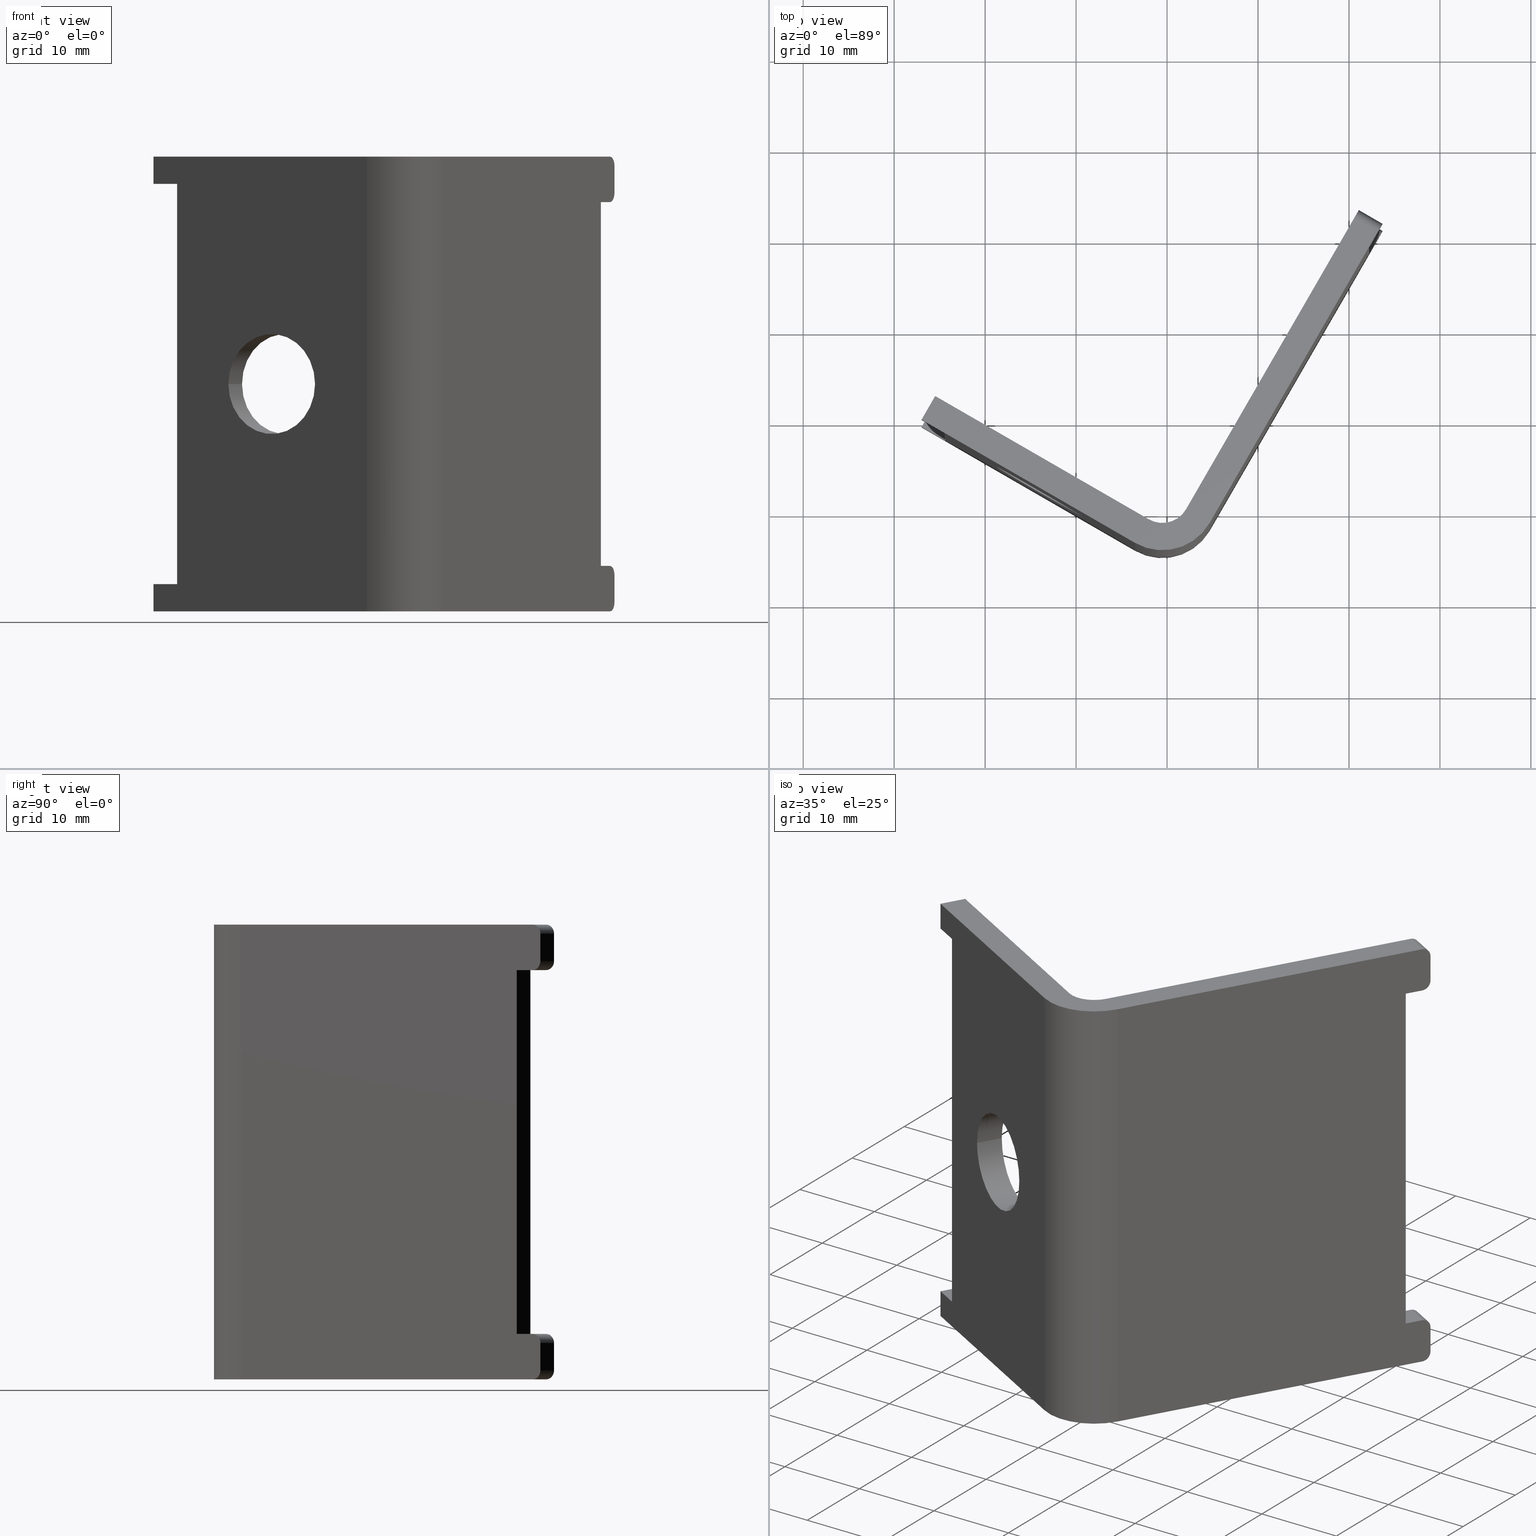
[diagram: canonical four-view strip — front | top / right | iso, engineering-drawing reading convention]
A machine part, canonical four-view strip (front | top / right | iso — engineering-drawing reading convention). The complete STEP part file that produces these views, byte-faithful:
ISO-10303-21;
HEADER;
FILE_DESCRIPTION (( 'STEP AP203' ),
    '1' );
FILE_NAME ('CV03-C-09_REV_A.step',
    '2025-08-17T05:17:42',
    ( '' ),
    ( '' ),
    'SwSTEP 2.0',
    'SolidWorks 2024',
    '' );
FILE_SCHEMA (( 'CONFIG_CONTROL_DESIGN' ));
ENDSEC;

DATA;
#1 = LINE ( 'NONE', #845, #650 ) ;
#2 = DIRECTION ( 'NONE',  ( -0.8660254037844363761, 0.5000000000000041078, 0.000000000000000000 ) ) ;
#3 = ORIENTED_EDGE ( 'NONE', *, *, #456, .T. ) ;
#4 = EDGE_CURVE ( 'NONE', #802, #139, #573, .T. ) ;
#5 = FACE_OUTER_BOUND ( 'NONE', #496, .T. ) ;
#6 = CARTESIAN_POINT ( 'NONE',  ( 583.0113405556609223, 1039.805264067781309, -25.00000000000002842 ) ) ;
#7 = APPROVAL ( #452, 'UNSPECIFIED' ) ;
#8 = CARTESIAN_POINT ( 'NONE',  ( 631.0831529111263762, 1062.853837226374935, -21.00000000000000000 ) ) ;
#9 = ORIENTED_EDGE ( 'NONE', *, *, #86, .T. ) ;
#10 = VECTOR ( 'NONE', #460, 1000.000000000000114 ) ;
#11 = DIRECTION ( 'NONE',  ( -1.000000000000000000, 0.000000000000000000, 0.000000000000000000 ) ) ;
#12 = LINE ( 'NONE', #497, #260 ) ;
#13 = AXIS2_PLACEMENT_3D ( 'NONE', #226, #380, #661 ) ;
#14 = DIRECTION ( 'NONE',  ( -0.5000000000000401901, -0.8660254037844155039, 0.000000000000000000 ) ) ;
#15 = VECTOR ( 'NONE', #210, 1000.000000000000000 ) ;
#16 = FACE_OUTER_BOUND ( 'NONE', #36, .T. ) ;
#17 = DIRECTION ( 'NONE',  ( -0.5000000000000022204, -0.8660254037844373753, -0.000000000000000000 ) ) ;
#18 = EDGE_CURVE ( 'NONE', #276, #243, #673, .T. ) ;
#19 = CARTESIAN_POINT ( 'NONE',  ( 584.5113405556609223, 1042.403340279134682, 25.00000000000000000 ) ) ;
#20 = CALENDAR_DATE ( 2025, 17, 8 ) ;
#21 = FACE_OUTER_BOUND ( 'NONE', #837, .T. ) ;
#22 = DIRECTION ( 'NONE',  ( 0.5000000000000401901, 0.8660254037844155039, 0.000000000000000000 ) ) ;
#23 = LINE ( 'NONE', #438, #540 ) ;
#24 = DIRECTION ( 'NONE',  ( 0.000000000000000000, 0.000000000000000000, -1.000000000000000000 ) ) ;
#25 = CLOSED_SHELL ( 'NONE', ( #453, #405, #662, #349, #808, #560, #164, #74, #396, #513, #555, #652, #252, #92, #670, #49, #548, #563, #531, #707, #717, #631, #114, #891, #375, #509, #356, #821 ) ) ;
#26 = ORIENTED_EDGE ( 'NONE', *, *, #391, .T. ) ;
#27 = VERTEX_POINT ( 'NONE', #752 ) ;
#28 = CARTESIAN_POINT ( 'NONE',  ( 630.5831529111263762, 1061.987811822590629, -24.00000000000000000 ) ) ;
#29 = AXIS2_PLACEMENT_3D ( 'NONE', #293, #859, #571 ) ;
#30 = LOCAL_TIME ( 15, 17, 42.00000000000000000, #902 ) ;
#31 = EDGE_CURVE ( 'NONE', #334, #146, #612, .T. ) ;
#32 = CARTESIAN_POINT ( 'NONE',  ( 592.7385822518555187, 1037.653340071148705, 6.735557395301680737E-16 ) ) ;
#33 = ORIENTED_EDGE ( 'NONE', *, *, #223, .T. ) ;
#34 = DIRECTION ( 'NONE',  ( 0.5000000000000041078, 0.8660254037844363761, 0.000000000000000000 ) ) ;
#35 = CC_DESIGN_PERSON_AND_ORGANIZATION_ASSIGNMENT ( #486, #530, ( #285 ) ) ;
#36 = EDGE_LOOP ( 'NONE', ( #98, #542, #683, #435, #459, #111, #583, #507, #115, #42, #60, #490 ) ) ;
#37 = CARTESIAN_POINT ( 'NONE',  ( 587.1094167670474917, 1040.903340279115355, 22.00000000000000355 ) ) ;
#38 = VERTEX_POINT ( 'NONE', #241 ) ;
#39 = EDGE_CURVE ( 'NONE', #334, #802, #760, .T. ) ;
#40 = DIRECTION ( 'NONE',  ( 0.8660254037844403729, -0.4999999999999969469, 0.000000000000000000 ) ) ;
#41 = ORIENTED_EDGE ( 'NONE', *, *, #462, .T. ) ;
#42 = ORIENTED_EDGE ( 'NONE', *, *, #391, .F. ) ;
#43 = CARTESIAN_POINT ( 'NONE',  ( 587.1094167670474917, 1040.903340279115355, -22.00000000000000355 ) ) ;
#44 = EDGE_CURVE ( 'NONE', #535, #696, #846, .T. ) ;
#45 = FACE_OUTER_BOUND ( 'NONE', #281, .T. ) ;
#46 = DIRECTION ( 'NONE',  ( -0.000000000000000000, -0.000000000000000000, -1.000000000000000000 ) ) ;
#47 = VERTEX_POINT ( 'NONE', #688 ) ;
#48 = DIRECTION ( 'NONE',  ( 0.8660254037844344888, -0.5000000000000073275, 0.000000000000000000 ) ) ;
#49 = ADVANCED_FACE ( 'NONE', ( #546 ), #484, .T. ) ;
#50 = VECTOR ( 'NONE', #217, 1000.000000000000000 ) ;
#51 = CARTESIAN_POINT ( 'NONE',  ( 610.5848748840967346, 1027.349778215887454, 25.00000000000000000 ) ) ;
#52 = AXIS2_PLACEMENT_3D ( 'NONE', #754, #771, #684 ) ;
#53 = CARTESIAN_POINT ( 'NONE',  ( 584.5113405556942325, 1042.403340279115582, 22.00000000000000355 ) ) ;
#54 = EDGE_CURVE ( 'NONE', #321, #144, #408, .T. ) ;
#55 = DIRECTION ( 'NONE',  ( 0.5000000000000401901, 0.8660254037844155039, 0.000000000000000000 ) ) ;
#56 = ORIENTED_EDGE ( 'NONE', *, *, #597, .T. ) ;
#57 = EDGE_CURVE ( 'NONE', #443, #668, #616, .T. ) ;
#58 = DATE_AND_TIME ( #811, #778 ) ;
#59 = VERTEX_POINT ( 'NONE', #624 ) ;
#60 = ORIENTED_EDGE ( 'NONE', *, *, #330, .F. ) ;
#61 = DIRECTION ( 'NONE',  ( -0.8660254037844317132, 0.5000000000000124345, -0.000000000000000000 ) ) ;
#62 = DATE_TIME_ROLE ( 'classification_date' ) ;
#63 = CARTESIAN_POINT ( 'NONE',  ( 613.1829510954501075, 1025.849778215887227, -19.99999999999999645 ) ) ;
#64 = DIRECTION ( 'NONE',  ( 0.000000000000000000, -0.000000000000000000, 1.000000000000000000 ) ) ;
#65 = VECTOR ( 'NONE', #262, 1000.000000000000114 ) ;
#66 = PRODUCT ( 'CV03-C-09_REV_A', 'CV03-C-09_REV_A', '', ( #570 ) ) ;
#67 = ORIENTED_EDGE ( 'NONE', *, *, #86, .F. ) ;
#68 = LINE ( 'NONE', #271, #626 ) ;
#69 = LINE ( 'NONE', #266, #112 ) ;
#70 = LINE ( 'NONE', #272, #219 ) ;
#71 = CIRCLE ( 'NONE', #394, 3.000000000000002665 ) ;
#72 = ADVANCED_BREP_SHAPE_REPRESENTATION ( 'CV03-C-09_REV_A', ( #768, #867 ), #420 ) ;
#73 = LINE ( 'NONE', #765, #653 ) ;
#74 = ADVANCED_FACE ( 'NONE', ( #911 ), #268, .T. ) ;
#75 = ORIENTED_EDGE ( 'NONE', *, *, #456, .F. ) ;
#76 = EDGE_LOOP ( 'NONE', ( #843, #575, #365, #674 ) ) ;
#77 = DIRECTION ( 'NONE',  ( 0.000000000000000000, 0.000000000000000000, 1.000000000000000000 ) ) ;
#78 = DIRECTION ( 'NONE',  ( -0.8660254037844363761, 0.5000000000000041078, 0.000000000000000000 ) ) ;
#79 = CARTESIAN_POINT ( 'NONE',  ( 583.0113405556609223, 1039.805264067781309, 22.00000000000000000 ) ) ;
#80 = LINE ( 'NONE', #63, #248 ) ;
#81 = ORIENTED_EDGE ( 'NONE', *, *, #316, .T. ) ;
#82 = ORIENTED_EDGE ( 'NONE', *, *, #234, .T. ) ;
#83 = DIRECTION ( 'NONE',  ( -0.5000000000000041078, -0.8660254037844363761, 0.000000000000000000 ) ) ;
#84 = CIRCLE ( 'NONE', #108, 1.000000000000031530 ) ;
#85 = DIRECTION ( 'NONE',  ( 0.4999999999999969469, 0.8660254037844404840, -0.000000000000000000 ) ) ;
#86 = EDGE_CURVE ( 'NONE', #585, #180, #610, .T. ) ;
#87 = CARTESIAN_POINT ( 'NONE',  ( 630.5831529111263762, 1061.987811822590402, 24.99999999999999645 ) ) ;
#88 = VECTOR ( 'NONE', #159, 1000.000000000000000 ) ;
#89 = EDGE_LOOP ( 'NONE', ( #275, #793, #499, #724 ) ) ;
#90 = DIRECTION ( 'NONE',  ( 0.8660254037844404840, -0.4999999999999969469, 0.000000000000000000 ) ) ;
#91 = DIRECTION ( 'NONE',  ( 0.000000000000000000, 0.000000000000000000, -1.000000000000000000 ) ) ;
#92 = ADVANCED_FACE ( 'NONE', ( #881 ), #812, .T. ) ;
#93 = CARTESIAN_POINT ( 'NONE',  ( 633.1812291224796354, 1060.487811822590629, 20.99999999999999645 ) ) ;
#94 = ORIENTED_EDGE ( 'NONE', *, *, #604, .F. ) ;
#95 = DIRECTION ( 'NONE',  ( -0.5000000000000401901, -0.8660254037844155039, 0.000000000000000000 ) ) ;
#96 = VERTEX_POINT ( 'NONE', #615 ) ;
#97 = CARTESIAN_POINT ( 'NONE',  ( 587.1094167670474917, 1040.903340279115355, -22.00000000000000355 ) ) ;
#98 = ORIENTED_EDGE ( 'NONE', *, *, #315, .T. ) ;
#99 = AXIS2_PLACEMENT_3D ( 'NONE', #123, #406, #410 ) ;
#100 = DIRECTION ( 'NONE',  ( -0.5000000000000401901, -0.8660254037844155039, 0.000000000000000000 ) ) ;
#101 = EDGE_CURVE ( 'NONE', #852, #96, #537, .T. ) ;
#102 = VERTEX_POINT ( 'NONE', #750 ) ;
#103 = ORIENTED_EDGE ( 'NONE', *, *, #322, .T. ) ;
#104 = PLANE ( 'NONE',  #757 ) ;
#105 = FACE_OUTER_BOUND ( 'NONE', #457, .T. ) ;
#106 = CARTESIAN_POINT ( 'NONE',  ( 584.5113405556609223, 1042.403340279134682, 25.00000000000000000 ) ) ;
#107 = EDGE_CURVE ( 'NONE', #321, #852, #678, .T. ) ;
#108 = AXIS2_PLACEMENT_3D ( 'NONE', #194, #288, #479 ) ;
#109 = CARTESIAN_POINT ( 'NONE',  ( 631.0831529111263762, 1062.853837226374935, 19.99999999999999645 ) ) ;
#110 = VECTOR ( 'NONE', #184, 1000.000000000000000 ) ;
#111 = ORIENTED_EDGE ( 'NONE', *, *, #316, .F. ) ;
#112 = VECTOR ( 'NONE', #128, 1000.000000000000114 ) ;
#113 = DIRECTION ( 'NONE',  ( -0.8660254037844317132, 0.5000000000000124345, -0.000000000000000000 ) ) ;
#114 = ADVANCED_FACE ( 'NONE', ( #318 ), #190, .T. ) ;
#115 = ORIENTED_EDGE ( 'NONE', *, *, #745, .F. ) ;
#116 = DIRECTION ( 'NONE',  ( 0.8660254037844404840, -0.4999999999999969469, 0.000000000000000000 ) ) ;
#117 = VECTOR ( 'NONE', #544, 1000.000000000000114 ) ;
#118 = CARTESIAN_POINT ( 'NONE',  ( 631.0831529111263762, 1062.853837226374935, 23.99999999999999645 ) ) ;
#119 = APPROVAL ( #174, 'UNSPECIFIED' ) ;
#120 = ORIENTED_EDGE ( 'NONE', *, *, #848, .F. ) ;
#121 = LINE ( 'NONE', #619, #823 ) ;
#122 = AXIS2_PLACEMENT_3D ( 'NONE', #400, #113, #251 ) ;
#123 = CARTESIAN_POINT ( 'NONE',  ( 610.5848748840967346, 1027.349778215887454, 25.00000000000000000 ) ) ;
#124 = VECTOR ( 'NONE', #367, 1000.000000000000114 ) ;
#125 = CARTESIAN_POINT ( 'NONE',  ( 584.5113405556609223, 1042.403340279134682, 25.00000000000000000 ) ) ;
#126 = VERTEX_POINT ( 'NONE', #590 ) ;
#127 = APPROVAL_ROLE ( '' ) ;
#128 = DIRECTION ( 'NONE',  ( 0.5000000000000124345, 0.8660254037844314912, -0.000000000000000000 ) ) ;
#129 = DIRECTION ( 'NONE',  ( 0.4999999999999969469, 0.8660254037844404840, -0.000000000000000000 ) ) ;
#130 = DIRECTION ( 'NONE',  ( -0.5000000000000041078, -0.8660254037844363761, 0.000000000000000000 ) ) ;
#131 = DIRECTION ( 'NONE',  ( -0.5000000000000124345, -0.8660254037844314912, 0.000000000000000000 ) ) ;
#132 = EDGE_CURVE ( 'NONE', #523, #618, #169, .T. ) ;
#133 = CARTESIAN_POINT ( 'NONE',  ( 609.4867986727433617, 1031.447854427240827, 25.00000000000000000 ) ) ;
#134 = VECTOR ( 'NONE', #2, 1000.000000000000000 ) ;
#135 = ORIENTED_EDGE ( 'NONE', *, *, #888, .F. ) ;
#136 = DIRECTION ( 'NONE',  ( -0.8660254037844317132, 0.5000000000000124345, -0.000000000000000000 ) ) ;
#137 = PLANE ( 'NONE',  #817 ) ;
#138 = AXIS2_PLACEMENT_3D ( 'NONE', #551, #300, #593 ) ;
#139 = VERTEX_POINT ( 'NONE', #733 ) ;
#140 = ORIENTED_EDGE ( 'NONE', *, *, #31, .T. ) ;
#141 = CARTESIAN_POINT ( 'NONE',  ( 584.5113405556609223, 1042.403340279134682, -25.00000000000000000 ) ) ;
#142 = EDGE_CURVE ( 'NONE', #594, #227, #181, .T. ) ;
#143 = VERTEX_POINT ( 'NONE', #329 ) ;
#144 = VERTEX_POINT ( 'NONE', #764 ) ;
#145 = DIRECTION ( 'NONE',  ( 0.5000000000000041078, 0.8660254037844363761, -0.000000000000000000 ) ) ;
#146 = VERTEX_POINT ( 'NONE', #412 ) ;
#147 = VECTOR ( 'NONE', #421, 1000.000000000000000 ) ;
#148 = CARTESIAN_POINT ( 'NONE',  ( 587.1094167670474917, 1040.903340279115355, -22.00000000000000355 ) ) ;
#149 = LINE ( 'NONE', #202, #592 ) ;
#150 = AXIS2_PLACEMENT_3D ( 'NONE', #647, #24, #800 ) ;
#151 = CARTESIAN_POINT ( 'NONE',  ( 0.000000000000000000, 0.000000000000000000, 0.000000000000000000 ) ) ;
#152 = PLANE ( 'NONE',  #419 ) ;
#153 = ORIENTED_EDGE ( 'NONE', *, *, #731, .F. ) ;
#154 = AXIS2_PLACEMENT_3D ( 'NONE', #697, #264, #766 ) ;
#155 = DIRECTION ( 'NONE',  ( -0.000000000000000000, -0.000000000000000000, -1.000000000000000000 ) ) ;
#156 = FACE_OUTER_BOUND ( 'NONE', #358, .T. ) ;
#157 = VERTEX_POINT ( 'NONE', #621 ) ;
#158 = CARTESIAN_POINT ( 'NONE',  ( 583.0113405556941188, 1039.805264067762209, 22.00000000000000000 ) ) ;
#159 = DIRECTION ( 'NONE',  ( -0.000000000000000000, -0.000000000000000000, -1.000000000000000000 ) ) ;
#160 = FACE_BOUND ( 'NONE', #795, .T. ) ;
#161 = EDGE_CURVE ( 'NONE', #594, #180, #446, .T. ) ;
#162 = ORIENTED_EDGE ( 'NONE', *, *, #581, .T. ) ;
#163 = LINE ( 'NONE', #515, #404 ) ;
#164 = ADVANCED_FACE ( 'NONE', ( #841 ), #730, .T. ) ;
#165 = ORIENTED_EDGE ( 'NONE', *, *, #888, .T. ) ;
#166 = ORIENTED_EDGE ( 'NONE', *, *, #642, .T. ) ;
#167 = VECTOR ( 'NONE', #865, 1000.000000000000114 ) ;
#168 = DIRECTION ( 'NONE',  ( 0.000000000000000000, 0.000000000000000000, -1.000000000000000000 ) ) ;
#169 = LINE ( 'NONE', #473, #753 ) ;
#170 = EDGE_CURVE ( 'NONE', #227, #27, #779, .T. ) ;
#171 = DIRECTION ( 'NONE',  ( 0.000000000000000000, 0.000000000000000000, -1.000000000000000000 ) ) ;
#172 = PLANE ( 'NONE',  #736 ) ;
#173 = LINE ( 'NONE', #739, #323 ) ;
#174 = APPROVAL_STATUS ( 'not_yet_approved' ) ;
#175 = CIRCLE ( 'NONE', #29, 3.000000000000002665 ) ;
#176 = EDGE_CURVE ( 'NONE', #523, #585, #196, .T. ) ;
#177 = ORIENTED_EDGE ( 'NONE', *, *, #231, .F. ) ;
#178 = PERSON_AND_ORGANIZATION ( #773, #250 ) ;
#179 = CC_DESIGN_PERSON_AND_ORGANIZATION_ASSIGNMENT ( #286, #677, ( #285 ) ) ;
#180 = VERTEX_POINT ( 'NONE', #550 ) ;
#181 = LINE ( 'NONE', #125, #791 ) ;
#182 = ORIENTED_EDGE ( 'NONE', *, *, #597, .F. ) ;
#183 = ORIENTED_EDGE ( 'NONE', *, *, #703, .F. ) ;
#184 = DIRECTION ( 'NONE',  ( 0.5000000000000041078, 0.8660254037844363761, 0.000000000000000000 ) ) ;
#185 = ORIENTED_EDGE ( 'NONE', *, *, #359, .F. ) ;
#186 = FACE_BOUND ( 'NONE', #831, .T. ) ;
#187 = AXIS2_PLACEMENT_3D ( 'NONE', #533, #61, #55 ) ;
#188 = CARTESIAN_POINT ( 'NONE',  ( 614.6829510954501075, 1028.447854427240600, -25.00000000000000000 ) ) ;
#189 = ORIENTED_EDGE ( 'NONE', *, *, #57, .T. ) ;
#190 = PLANE ( 'NONE',  #295 ) ;
#191 = ORIENTED_EDGE ( 'NONE', *, *, #526, .T. ) ;
#192 = ORIENTED_EDGE ( 'NONE', *, *, #176, .F. ) ;
#193 = EDGE_CURVE ( 'NONE', #357, #785, #488, .T. ) ;
#194 = CARTESIAN_POINT ( 'NONE',  ( 630.5831529111263762, 1061.987811822590629, -21.00000000000000000 ) ) ;
#195 = DIRECTION ( 'NONE',  ( -0.8660254037844363761, 0.5000000000000041078, 0.000000000000000000 ) ) ;
#196 = LINE ( 'NONE', #79, #878 ) ;
#197 = DIRECTION ( 'NONE',  ( -0.8660254037844344888, 0.5000000000000073275, 0.000000000000000000 ) ) ;
#198 = CIRCLE ( 'NONE', #706, 1.000000000000031530 ) ;
#199 = EDGE_LOOP ( 'NONE', ( #720, #389, #651, #855 ) ) ;
#200 = EDGE_LOOP ( 'NONE', ( #589, #324, #463, #177 ) ) ;
#201 = ORIENTED_EDGE ( 'NONE', *, *, #359, .T. ) ;
#202 = CARTESIAN_POINT ( 'NONE',  ( 632.5831529172152159, 1065.451913448274581, 19.99999999999999645 ) ) ;
#203 = APPROVAL_PERSON_ORGANIZATION ( #716, #7, #127 ) ;
#204 = PLANE ( 'NONE',  #369 ) ;
#205 = EDGE_CURVE ( 'NONE', #47, #586, #466, .T. ) ;
#206 = APPLICATION_PROTOCOL_DEFINITION ( 'international standard', 'config_control_design', 1994, #579 ) ;
#207 = CARTESIAN_POINT ( 'NONE',  ( 631.0831529111263762, 1062.853837226374935, -21.00000000000000000 ) ) ;
#208 = APPROVAL_STATUS ( 'not_yet_approved' ) ;
#209 = DIRECTION ( 'NONE',  ( 0.8660254037844403729, -0.4999999999999969469, 0.000000000000000000 ) ) ;
#210 = DIRECTION ( 'NONE',  ( -0.000000000000000000, -0.000000000000000000, -1.000000000000000000 ) ) ;
#211 = PRODUCT_DEFINITION ( 'UNKNOWN', '', #285, #737 ) ;
#212 = LINE ( 'NONE', #431, #50 ) ;
#213 = ORIENTED_EDGE ( 'NONE', *, *, #422, .T. ) ;
#214 = DIRECTION ( 'NONE',  ( -0.8660254037844363761, 0.5000000000000041078, 0.000000000000000000 ) ) ;
#215 = LINE ( 'NONE', #87, #522 ) ;
#216 = ORIENTED_EDGE ( 'NONE', *, *, #307, .F. ) ;
#217 = DIRECTION ( 'NONE',  ( -0.000000000000000000, -0.000000000000000000, -1.000000000000000000 ) ) ;
#218 = LINE ( 'NONE', #566, #468 ) ;
#219 = VECTOR ( 'NONE', #628, 1000.000000000000000 ) ;
#220 = ORIENTED_EDGE ( 'NONE', *, *, #101, .T. ) ;
#221 = DATE_AND_TIME ( #862, #710 ) ;
#222 = ORIENTED_EDGE ( 'NONE', *, *, #170, .F. ) ;
#223 = EDGE_CURVE ( 'NONE', #276, #802, #84, .T. ) ;
#224 = DIRECTION ( 'NONE',  ( 0.8660254037844404840, -0.4999999999999969469, 0.000000000000000000 ) ) ;
#225 = ORIENTED_EDGE ( 'NONE', *, *, #294, .F. ) ;
#226 = CARTESIAN_POINT ( 'NONE',  ( 596.0017219726637450, 1032.305263859798970, 0.000000000000000000 ) ) ;
#227 = VERTEX_POINT ( 'NONE', #558 ) ;
#228 = EDGE_LOOP ( 'NONE', ( #67, #225, #346, #714 ) ) ;
#229 = PERSON_AND_ORGANIZATION_ROLE ( 'creator' ) ;
#230 = EDGE_LOOP ( 'NONE', ( #876, #809, #304, #385 ) ) ;
#231 = EDGE_CURVE ( 'NONE', #789, #403, #149, .T. ) ;
#232 = AXIS2_PLACEMENT_3D ( 'NONE', #309, #904, #682 ) ;
#233 = ORIENTED_EDGE ( 'NONE', *, *, #526, .F. ) ;
#234 = EDGE_CURVE ( 'NONE', #139, #102, #198, .T. ) ;
#235 = AXIS2_PLACEMENT_3D ( 'NONE', #889, #692, #704 ) ;
#236 = ORIENTED_EDGE ( 'NONE', *, *, #388, .F. ) ;
#237 = DIRECTION ( 'NONE',  ( 0.5000000000000041078, 0.8660254037844363761, -0.000000000000000000 ) ) ;
#238 = DIRECTION ( 'NONE',  ( -0.8660254037844314912, 0.5000000000000124345, -0.000000000000000000 ) ) ;
#239 = VERTEX_POINT ( 'NONE', #283 ) ;
#240 = EDGE_CURVE ( 'NONE', #38, #102, #1, .T. ) ;
#241 = CARTESIAN_POINT ( 'NONE',  ( 633.1812291224796354, 1060.487811822590402, -25.00000000000000000 ) ) ;
#242 = DIRECTION ( 'NONE',  ( -0.8660254037844314912, 0.5000000000000124345, -0.000000000000000000 ) ) ;
#243 = VERTEX_POINT ( 'NONE', #775 ) ;
#244 = VECTOR ( 'NONE', #237, 1000.000000000000000 ) ;
#245 = CARTESIAN_POINT ( 'NONE',  ( 631.0831529111263762, 1062.853837226374935, 20.99999999999999645 ) ) ;
#246 = APPROVAL_ROLE ( '' ) ;
#247 = AXIS2_PLACEMENT_3D ( 'NONE', #289, #517, #572 ) ;
#248 = VECTOR ( 'NONE', #83, 1000.000000000000000 ) ;
#249 = EDGE_LOOP ( 'NONE', ( #290, #326, #9, #805 ) ) ;
#250 = ORGANIZATION ( 'UNSPECIFIED', 'UNSPECIFIED', '' ) ;
#251 = DIRECTION ( 'NONE',  ( 0.5000000000000401901, 0.8660254037844155039, -2.220446049250243156E-13 ) ) ;
#252 = ADVANCED_FACE ( 'NONE', ( #702 ), #137, .T. ) ;
#253 = LINE ( 'NONE', #824, #909 ) ;
#254 = CARTESIAN_POINT ( 'NONE',  ( 609.4867986727433617, 1031.447854427240827, -25.00000000000000000 ) ) ;
#255 = CYLINDRICAL_SURFACE ( 'NONE', #319, 5.499999999992874145 ) ;
#256 = DIRECTION ( 'NONE',  ( -0.5000000000000041078, -0.8660254037844363761, 0.000000000000000000 ) ) ;
#257 = CARTESIAN_POINT ( 'NONE',  ( 610.5848748840967346, 1027.349778215887454, -25.00000000000000000 ) ) ;
#258 = DIRECTION ( 'NONE',  ( -0.000000000000000000, -0.000000000000000000, -1.000000000000000000 ) ) ;
#259 = ORIENTED_EDGE ( 'NONE', *, *, #734, .T. ) ;
#260 = VECTOR ( 'NONE', #553, 1000.000000000000000 ) ;
#261 =( NAMED_UNIT ( * ) SI_UNIT ( $, .STERADIAN. ) SOLID_ANGLE_UNIT ( ) );
#262 = DIRECTION ( 'NONE',  ( -0.8660254037844408170, 0.4999999999999963363, -0.000000000000000000 ) ) ;
#263 = EDGE_CURVE ( 'NONE', #126, #96, #477, .T. ) ;
#264 = DIRECTION ( 'NONE',  ( 0.4999999999999970024, 0.8660254037844404840, -0.000000000000000000 ) ) ;
#265 = CC_DESIGN_SECURITY_CLASSIFICATION ( #386, ( #285 ) ) ;
#266 = CARTESIAN_POINT ( 'NONE',  ( 607.9867986727432481, 1028.849778215887454, 25.00000000000000000 ) ) ;
#267 = CARTESIAN_POINT ( 'NONE',  ( 591.2385822518555187, 1035.055263859795332, 6.735557395301680737E-16 ) ) ;
#268 = PLANE ( 'NONE',  #430 ) ;
#269 = ORIENTED_EDGE ( 'NONE', *, *, #604, .T. ) ;
#270 = CARTESIAN_POINT ( 'NONE',  ( 584.5113405556609223, 1042.403340279134682, 25.00000000000000000 ) ) ;
#271 = CARTESIAN_POINT ( 'NONE',  ( 629.5831529068967711, 1060.255761007695810, -19.99999999999999645 ) ) ;
#272 = CARTESIAN_POINT ( 'NONE',  ( 632.1812291182501440, 1058.755761007695810, 25.00000000000000000 ) ) ;
#273 = CARTESIAN_POINT ( 'NONE',  ( 597.5017219726637450, 1034.903340071152343, 0.000000000000000000 ) ) ;
#274 = SHAPE_DEFINITION_REPRESENTATION ( #372, #72 ) ;
#275 = ORIENTED_EDGE ( 'NONE', *, *, #762, .T. ) ;
#276 = VERTEX_POINT ( 'NONE', #569 ) ;
#277 = PLANE ( 'NONE',  #138 ) ;
#278 = EDGE_CURVE ( 'NONE', #820, #144, #857, .T. ) ;
#279 = LINE ( 'NONE', #141, #602 ) ;
#280 = VECTOR ( 'NONE', #17, 999.9999999999998863 ) ;
#281 = EDGE_LOOP ( 'NONE', ( #870, #399, #3, #502 ) ) ;
#282 = VECTOR ( 'NONE', #874, 1000.000000000000114 ) ;
#283 = CARTESIAN_POINT ( 'NONE',  ( 600.7648616934719712, 1029.555263859802380, 0.000000000000000000 ) ) ;
#284 = CC_DESIGN_PERSON_AND_ORGANIZATION_ASSIGNMENT ( #370, #712, ( #66 ) ) ;
#285 = PRODUCT_DEFINITION_FORMATION_WITH_SPECIFIED_SOURCE ( 'ANY', '', #66, .NOT_KNOWN. ) ;
#286 = PERSON_AND_ORGANIZATION ( #773, #250 ) ;
#287 = DIRECTION ( 'NONE',  ( 0.5000000000000401901, 0.8660254037844155039, 0.000000000000000000 ) ) ;
#288 = DIRECTION ( 'NONE',  ( -0.8660254037844317132, 0.5000000000000124345, -0.000000000000000000 ) ) ;
#289 = CARTESIAN_POINT ( 'NONE',  ( 609.4867986727433617, 1031.447854427240827, 25.00000000000000000 ) ) ;
#290 = ORIENTED_EDGE ( 'NONE', *, *, #132, .F. ) ;
#291 = DIRECTION ( 'NONE',  ( -0.000000000000000000, 0.000000000000000000, -1.000000000000000000 ) ) ;
#292 = ORIENTED_EDGE ( 'NONE', *, *, #687, .T. ) ;
#293 = CARTESIAN_POINT ( 'NONE',  ( 609.4867986727433617, 1031.447854427240827, -25.00000000000000000 ) ) ;
#294 = EDGE_CURVE ( 'NONE', #401, #585, #12, .T. ) ;
#295 = AXIS2_PLACEMENT_3D ( 'NONE', #756, #832, #256 ) ;
#296 = AXIS2_PLACEMENT_3D ( 'NONE', #397, #64, #806 ) ;
#297 = ORIENTED_EDGE ( 'NONE', *, *, #39, .F. ) ;
#298 = CIRCLE ( 'NONE', #52, 1.000000000000031530 ) ;
#299 = CARTESIAN_POINT ( 'NONE',  ( 633.1812291224796354, 1060.487811822590402, 19.99999999999999645 ) ) ;
#300 = DIRECTION ( 'NONE',  ( 0.000000000000000000, -0.000000000000000000, 1.000000000000000000 ) ) ;
#301 = CARTESIAN_POINT ( 'NONE',  ( 630.5831529111263762, 1061.987811822590629, 23.99999999999999645 ) ) ;
#302 = PERSON_AND_ORGANIZATION ( #773, #250 ) ;
#303 = ORIENTED_EDGE ( 'NONE', *, *, #142, .F. ) ;
#304 = ORIENTED_EDGE ( 'NONE', *, *, #240, .T. ) ;
#305 = CARTESIAN_POINT ( 'NONE',  ( 613.1829510954501075, 1025.849778215887227, 25.00000000000000000 ) ) ;
#306 = EDGE_LOOP ( 'NONE', ( #75, #749, #308, #564 ) ) ;
#307 = EDGE_CURVE ( 'NONE', #852, #310, #279, .T. ) ;
#308 = ORIENTED_EDGE ( 'NONE', *, *, #39, .T. ) ;
#309 = CARTESIAN_POINT ( 'NONE',  ( 629.5831529068967711, 1060.255761007695810, 25.00000000000000000 ) ) ;
#310 = VERTEX_POINT ( 'NONE', #853 ) ;
#311 = ORIENTED_EDGE ( 'NONE', *, *, #54, .F. ) ;
#312 = ORIENTED_EDGE ( 'NONE', *, *, #860, .T. ) ;
#313 = AXIS2_PLACEMENT_3D ( 'NONE', #660, #392, #40 ) ;
#314 = EDGE_CURVE ( 'NONE', #310, #27, #345, .T. ) ;
#315 = EDGE_CURVE ( 'NONE', #443, #38, #562, .T. ) ;
#316 = EDGE_CURVE ( 'NONE', #59, #341, #70, .T. ) ;
#317 = CIRCLE ( 'NONE', #122, 1.000000000000031530 ) ;
#318 = FACE_OUTER_BOUND ( 'NONE', #552, .T. ) ;
#319 = AXIS2_PLACEMENT_3D ( 'NONE', #886, #520, #48 ) ;
#320 = ORIENTED_EDGE ( 'NONE', *, *, #762, .F. ) ;
#321 = VERTEX_POINT ( 'NONE', #428 ) ;
#322 = EDGE_CURVE ( 'NONE', #666, #634, #215, .T. ) ;
#323 = VECTOR ( 'NONE', #606, 1000.000000000000000 ) ;
#324 = ORIENTED_EDGE ( 'NONE', *, *, #432, .T. ) ;
#325 = DIRECTION ( 'NONE',  ( 0.5000000000000041078, 0.8660254037844363761, 0.000000000000000000 ) ) ;
#326 = ORIENTED_EDGE ( 'NONE', *, *, #176, .T. ) ;
#327 = CARTESIAN_POINT ( 'NONE',  ( 583.0113405556941188, 1039.805264067762209, 25.00000000000000000 ) ) ;
#328 = EDGE_LOOP ( 'NONE', ( #427, #568, #607, #538 ) ) ;
#329 = CARTESIAN_POINT ( 'NONE',  ( 585.6094167670476054, 1038.305264067762209, -22.00000000000002487 ) ) ;
#330 = EDGE_CURVE ( 'NONE', #658, #666, #735, .T. ) ;
#331 = ORIENTED_EDGE ( 'NONE', *, *, #4, .T. ) ;
#332 = ORIENTED_EDGE ( 'NONE', *, *, #635, .F. ) ;
#333 = CARTESIAN_POINT ( 'NONE',  ( 584.5113405556942325, 1042.403340279115582, -22.00000000000000355 ) ) ;
#334 = VERTEX_POINT ( 'NONE', #449 ) ;
#335 = DIRECTION ( 'NONE',  ( -0.8660254037844404840, 0.4999999999999969469, 0.000000000000000000 ) ) ;
#336 = LINE ( 'NONE', #851, #433 ) ;
#337 = COORDINATED_UNIVERSAL_TIME_OFFSET ( 10, 0, .AHEAD. ) ;
#338 = LINE ( 'NONE', #699, #344 ) ;
#339 = CIRCLE ( 'NONE', #892, 1.000000000000031530 ) ;
#340 = DIRECTION ( 'NONE',  ( 0.4999999999999970024, 0.8660254037844404840, -0.000000000000000000 ) ) ;
#341 = VERTEX_POINT ( 'NONE', #383 ) ;
#342 = CIRCLE ( 'NONE', #822, 1.000000000000031530 ) ;
#343 = CARTESIAN_POINT ( 'NONE',  ( 633.1812291224796354, 1060.487811822590629, -24.00000000000000000 ) ) ;
#344 = VECTOR ( 'NONE', #78, 1000.000000000000000 ) ;
#345 = LINE ( 'NONE', #705, #620 ) ;
#346 = ORIENTED_EDGE ( 'NONE', *, *, #584, .T. ) ;
#347 = CARTESIAN_POINT ( 'NONE',  ( 631.0831529111263762, 1062.853837226374935, 23.99999999999999645 ) ) ;
#348 = DATE_AND_TIME ( #409, #30 ) ;
#349 = ADVANCED_FACE ( 'NONE', ( #715 ), #582, .F. ) ;
#350 = ORIENTED_EDGE ( 'NONE', *, *, #422, .F. ) ;
#351 = ORIENTED_EDGE ( 'NONE', *, *, #440, .F. ) ;
#352 =( LENGTH_UNIT ( ) NAMED_UNIT ( * ) SI_UNIT ( .MILLI., .METRE. ) );
#353 = CARTESIAN_POINT ( 'NONE',  ( 584.5113405556609223, 1042.403340279134682, 25.00000000000000000 ) ) ;
#354 = DIRECTION ( 'NONE',  ( -0.8660254037844363761, 0.5000000000000041078, 0.000000000000000000 ) ) ;
#355 = FACE_OUTER_BOUND ( 'NONE', #249, .T. ) ;
#356 = ADVANCED_FACE ( 'NONE', ( #160, #814 ), #172, .F. ) ;
#357 = VERTEX_POINT ( 'NONE', #32 ) ;
#358 = EDGE_LOOP ( 'NONE', ( #120, #763, #758, #351 ) ) ;
#359 = EDGE_CURVE ( 'NONE', #634, #696, #339, .T. ) ;
#360 = LINE ( 'NONE', #803, #124 ) ;
#361 = DIRECTION ( 'NONE',  ( -0.8660254037844404840, 0.4999999999999969469, 0.000000000000000000 ) ) ;
#362 = VECTOR ( 'NONE', #847, 1000.000000000000000 ) ;
#363 = CARTESIAN_POINT ( 'NONE',  ( 584.5113405556609223, 1042.403340279134682, 25.00000000000000000 ) ) ;
#364 = ORIENTED_EDGE ( 'NONE', *, *, #796, .F. ) ;
#365 = ORIENTED_EDGE ( 'NONE', *, *, #314, .T. ) ;
#366 = CARTESIAN_POINT ( 'NONE',  ( 609.4867986727433617, 1031.447854427240827, 25.00000000000000000 ) ) ;
#367 = DIRECTION ( 'NONE',  ( 0.4999999999999969469, 0.8660254037844404840, -0.000000000000000000 ) ) ;
#368 = DIRECTION ( 'NONE',  ( -0.5000000000000124345, -0.8660254037844314912, 0.000000000000000000 ) ) ;
#369 = AXIS2_PLACEMENT_3D ( 'NONE', #37, #168, #238 ) ;
#370 = PERSON_AND_ORGANIZATION ( #773, #250 ) ;
#371 = EDGE_LOOP ( 'NONE', ( #743, #81, #897, #153 ) ) ;
#372 = PRODUCT_DEFINITION_SHAPE ( 'NONE', 'NONE',  #211 ) ;
#373 = CARTESIAN_POINT ( 'NONE',  ( 633.6812291224797491, 1061.353837226374935, 23.99999999999999645 ) ) ;
#374 = DIRECTION ( 'NONE',  ( -0.8660254037844317132, 0.5000000000000124345, -0.000000000000000000 ) ) ;
#375 = ADVANCED_FACE ( 'NONE', ( #748 ), #819, .T. ) ;
#376 = FACE_OUTER_BOUND ( 'NONE', #76, .T. ) ;
#377 = DIRECTION ( 'NONE',  ( -0.8660254037844362651, 0.5000000000000041078, 0.000000000000000000 ) ) ;
#378 = PLANE ( 'NONE',  #150 ) ;
#379 = DIRECTION ( 'NONE',  ( -0.000000000000000000, -0.000000000000000000, -1.000000000000000000 ) ) ;
#380 = DIRECTION ( 'NONE',  ( 0.4999999999999970024, 0.8660254037844404840, -0.000000000000000000 ) ) ;
#381 = VECTOR ( 'NONE', #390, 1000.000000000000000 ) ;
#382 = FACE_OUTER_BOUND ( 'NONE', #199, .T. ) ;
#383 = CARTESIAN_POINT ( 'NONE',  ( 632.1812291182501440, 1058.755761007695810, -19.99999999999999645 ) ) ;
#384 = CIRCLE ( 'NONE', #895, 5.499999999992874145 ) ;
#385 = ORIENTED_EDGE ( 'NONE', *, *, #234, .F. ) ;
#386 = SECURITY_CLASSIFICATION ( '', '', #827 ) ;
#387 = LINE ( 'NONE', #19, #167 ) ;
#388 = EDGE_CURVE ( 'NONE', #96, #443, #516, .T. ) ;
#389 = ORIENTED_EDGE ( 'NONE', *, *, #745, .T. ) ;
#390 = DIRECTION ( 'NONE',  ( -0.000000000000000000, -0.000000000000000000, -1.000000000000000000 ) ) ;
#391 = EDGE_CURVE ( 'NONE', #666, #535, #317, .T. ) ;
#392 = DIRECTION ( 'NONE',  ( 0.000000000000000000, 0.000000000000000000, 1.000000000000000000 ) ) ;
#393 = CARTESIAN_POINT ( 'NONE',  ( 630.5831529111263762, 1061.987811822590402, 24.99999999999999645 ) ) ;
#394 = AXIS2_PLACEMENT_3D ( 'NONE', #366, #633, #11 ) ;
#395 = DIRECTION ( 'NONE',  ( 0.000000000000000000, 0.000000000000000000, -1.000000000000000000 ) ) ;
#396 = ADVANCED_FACE ( 'NONE', ( #613 ), #451, .T. ) ;
#397 = CARTESIAN_POINT ( 'NONE',  ( 609.4867986727433617, 1031.447854427240827, -25.00000000000000000 ) ) ;
#398 = DIRECTION ( 'NONE',  ( -1.000000000000000000, 0.000000000000000000, 0.000000000000000000 ) ) ;
#399 = ORIENTED_EDGE ( 'NONE', *, *, #744, .F. ) ;
#400 = CARTESIAN_POINT ( 'NONE',  ( 633.1812291224796354, 1060.487811822590629, 23.99999999999999645 ) ) ;
#401 = VERTEX_POINT ( 'NONE', #885 ) ;
#402 = DIRECTION ( 'NONE',  ( -0.000000000000000000, -0.000000000000000000, -1.000000000000000000 ) ) ;
#403 = VERTEX_POINT ( 'NONE', #671 ) ;
#404 = VECTOR ( 'NONE', #155, 1000.000000000000000 ) ;
#405 = ADVANCED_FACE ( 'NONE', ( #825 ), #685, .F. ) ;
#406 = DIRECTION ( 'NONE',  ( 0.000000000000000000, -0.000000000000000000, 1.000000000000000000 ) ) ;
#407 = DIRECTION ( 'NONE',  ( 0.8660254037844403729, -0.4999999999999969469, 0.000000000000000000 ) ) ;
#408 = LINE ( 'NONE', #333, #536 ) ;
#409 = CALENDAR_DATE ( 2025, 17, 8 ) ;
#410 = DIRECTION ( 'NONE',  ( 0.5000000000000041078, 0.8660254037844363761, 0.000000000000000000 ) ) ;
#411 = DATE_AND_TIME ( #614, #657 ) ;
#412 = CARTESIAN_POINT ( 'NONE',  ( 633.6812291224797491, 1061.353837226374935, -24.00000000000000000 ) ) ;
#413 = DIRECTION ( 'NONE',  ( -0.8660254037844363761, 0.5000000000000041078, 0.000000000000000000 ) ) ;
#414 = FACE_OUTER_BOUND ( 'NONE', #645, .T. ) ;
#415 = DIRECTION ( 'NONE',  ( -0.5000000000000401901, -0.8660254037844155039, 0.000000000000000000 ) ) ;
#416 = CARTESIAN_POINT ( 'NONE',  ( 587.1094167670474917, 1040.903340279115355, -22.00000000000000355 ) ) ;
#417 = AXIS2_PLACEMENT_3D ( 'NONE', #97, #224, #799 ) ;
#418 = DIRECTION ( 'NONE',  ( 1.000000000000000000, 0.000000000000000000, 0.000000000000000000 ) ) ;
#419 = AXIS2_PLACEMENT_3D ( 'NONE', #863, #506, #718 ) ;
#420 =( GEOMETRIC_REPRESENTATION_CONTEXT ( 3 ) GLOBAL_UNCERTAINTY_ASSIGNED_CONTEXT ( ( #818 ) ) GLOBAL_UNIT_ASSIGNED_CONTEXT ( ( #352, #903, #261 ) ) REPRESENTATION_CONTEXT ( 'NONE', 'WORKASPACE' ) );
#421 = DIRECTION ( 'NONE',  ( -0.000000000000000000, -0.000000000000000000, -1.000000000000000000 ) ) ;
#422 = EDGE_CURVE ( 'NONE', #547, #634, #675, .T. ) ;
#423 = CC_DESIGN_PERSON_AND_ORGANIZATION_ASSIGNMENT ( #178, #608, ( #386 ) ) ;
#424 = CARTESIAN_POINT ( 'NONE',  ( 632.5831529172152159, 1065.451913448274581, 19.99999999999999645 ) ) ;
#425 = ORIENTED_EDGE ( 'NONE', *, *, #440, .T. ) ;
#426 = ORIENTED_EDGE ( 'NONE', *, *, #703, .T. ) ;
#427 = ORIENTED_EDGE ( 'NONE', *, *, #388, .T. ) ;
#428 = CARTESIAN_POINT ( 'NONE',  ( 583.0113405556941188, 1039.805264067762209, -22.00000000000002487 ) ) ;
#429 = ORIENTED_EDGE ( 'NONE', *, *, #444, .T. ) ;
#430 = AXIS2_PLACEMENT_3D ( 'NONE', #133, #842, #418 ) ;
#431 = CARTESIAN_POINT ( 'NONE',  ( 587.1094167670474917, 1040.903340279115355, -22.00000000000000355 ) ) ;
#432 = EDGE_CURVE ( 'NONE', #586, #59, #173, .T. ) ;
#433 = VECTOR ( 'NONE', #788, 1000.000000000000000 ) ;
#434 = CARTESIAN_POINT ( 'NONE',  ( 607.9867986727432481, 1028.849778215887454, 25.00000000000000000 ) ) ;
#435 = ORIENTED_EDGE ( 'NONE', *, *, #871, .F. ) ;
#436 = CARTESIAN_POINT ( 'NONE',  ( 630.5831529111263762, 1061.987811822590629, 20.99999999999999645 ) ) ;
#437 = VERTEX_POINT ( 'NONE', #898 ) ;
#438 = CARTESIAN_POINT ( 'NONE',  ( 630.5831529111263762, 1061.987811822590402, 19.99999999999999645 ) ) ;
#439 = ORIENTED_EDGE ( 'NONE', *, *, #107, .F. ) ;
#440 = EDGE_CURVE ( 'NONE', #830, #789, #839, .T. ) ;
#441 = VECTOR ( 'NONE', #85, 1000.000000000000114 ) ;
#442 = EDGE_LOOP ( 'NONE', ( #746, #894, #103, #350 ) ) ;
#443 = VERTEX_POINT ( 'NONE', #188 ) ;
#444 = EDGE_CURVE ( 'NONE', #618, #180, #471, .T. ) ;
#445 = DIRECTION ( 'NONE',  ( -0.8660254037844363761, 0.5000000000000041078, 0.000000000000000000 ) ) ;
#446 = LINE ( 'NONE', #908, #381 ) ;
#447 = CARTESIAN_POINT ( 'NONE',  ( 631.0831529111263762, 1062.853837226374935, 19.99999999999999645 ) ) ;
#448 = ORIENTED_EDGE ( 'NONE', *, *, #584, .F. ) ;
#449 = CARTESIAN_POINT ( 'NONE',  ( 633.6812291224797491, 1061.353837226374935, -20.99999999999999645 ) ) ;
#450 = CARTESIAN_POINT ( 'NONE',  ( 632.5831529172152159, 1065.451913448274581, -20.00000000000000000 ) ) ;
#451 = PLANE ( 'NONE',  #99 ) ;
#452 = APPROVAL_STATUS ( 'not_yet_approved' ) ;
#453 = ADVANCED_FACE ( 'NONE', ( #519 ), #816, .F. ) ;
#454 = AXIS2_PLACEMENT_3D ( 'NONE', #106, #90, #491 ) ;
#455 = CC_DESIGN_APPROVAL ( #119, ( #211 ) ) ;
#456 = EDGE_CURVE ( 'NONE', #437, #276, #336, .T. ) ;
#457 = EDGE_LOOP ( 'NONE', ( #94, #222, #787, #864 ) ) ;
#458 = DIRECTION ( 'NONE',  ( 0.5000000000000401901, 0.8660254037844155039, -2.220446049250243156E-13 ) ) ;
#459 = ORIENTED_EDGE ( 'NONE', *, *, #744, .T. ) ;
#460 = DIRECTION ( 'NONE',  ( 0.8660254037844404840, -0.4999999999999969469, -0.000000000000000000 ) ) ;
#461 = LINE ( 'NONE', #257, #110 ) ;
#462 = EDGE_CURVE ( 'NONE', #143, #820, #476, .T. ) ;
#463 = ORIENTED_EDGE ( 'NONE', *, *, #680, .T. ) ;
#464 = ORIENTED_EDGE ( 'NONE', *, *, #54, .T. ) ;
#465 = ORIENTED_EDGE ( 'NONE', *, *, #462, .F. ) ;
#466 = CIRCLE ( 'NONE', #861, 1.000000000000031530 ) ;
#467 = EDGE_CURVE ( 'NONE', #146, #38, #342, .T. ) ;
#468 = VECTOR ( 'NONE', #500, 1000.000000000000000 ) ;
#469 = PRODUCT_RELATED_PRODUCT_CATEGORY ( 'detail', '', ( #66 ) ) ;
#470 = ORIENTED_EDGE ( 'NONE', *, *, #835, .T. ) ;
#471 = LINE ( 'NONE', #600, #849 ) ;
#472 = ORIENTED_EDGE ( 'NONE', *, *, #625, .T. ) ;
#473 = CARTESIAN_POINT ( 'NONE',  ( 587.1094167670474917, 1040.903340279115355, 22.00000000000000355 ) ) ;
#474 = ORIENTED_EDGE ( 'NONE', *, *, #322, .F. ) ;
#475 = ORIENTED_EDGE ( 'NONE', *, *, #796, .T. ) ;
#476 = LINE ( 'NONE', #148, #441 ) ;
#477 = LINE ( 'NONE', #700, #147 ) ;
#478 = CARTESIAN_POINT ( 'NONE',  ( 585.6094167670476054, 1038.305264067762209, 22.00000000000000000 ) ) ;
#479 = DIRECTION ( 'NONE',  ( 0.5000000000000401901, 0.8660254037844155039, -2.220446049250243156E-13 ) ) ;
#480 = EDGE_CURVE ( 'NONE', #227, #547, #71, .T. ) ;
#481 = CIRCLE ( 'NONE', #667, 6.000000000000005329 ) ;
#482 = CC_DESIGN_APPROVAL ( #609, ( #386 ) ) ;
#483 = CARTESIAN_POINT ( 'NONE',  ( 583.0113405556609223, 1039.805264067781309, -22.00000000000002487 ) ) ;
#484 = CYLINDRICAL_SURFACE ( 'NONE', #691, 1.000000000000031530 ) ;
#485 = ORIENTED_EDGE ( 'NONE', *, *, #132, .T. ) ;
#486 = PERSON_AND_ORGANIZATION ( #773, #250 ) ;
#487 = ORIENTED_EDGE ( 'NONE', *, *, #587, .F. ) ;
#488 = LINE ( 'NONE', #790, #280 ) ;
#489 = DIRECTION ( 'NONE',  ( -0.8660254037844404840, 0.4999999999999969469, 0.000000000000000000 ) ) ;
#490 = ORIENTED_EDGE ( 'NONE', *, *, #776, .T. ) ;
#491 = DIRECTION ( 'NONE',  ( -0.000000000000000000, -0.000000000000000000, -1.000000000000000000 ) ) ;
#492 = EDGE_CURVE ( 'NONE', #126, #658, #481, .T. ) ;
#493 = EDGE_LOOP ( 'NONE', ( #216, #439, #464, #191 ) ) ;
#494 = ORIENTED_EDGE ( 'NONE', *, *, #314, .F. ) ;
#495 = CYLINDRICAL_SURFACE ( 'NONE', #882, 1.000000000000031530 ) ;
#496 = EDGE_LOOP ( 'NONE', ( #514, #747, #189, #426 ) ) ;
#497 = CARTESIAN_POINT ( 'NONE',  ( 583.0113405556609223, 1039.805264067781309, 25.00000000000000000 ) ) ;
#498 = VECTOR ( 'NONE', #402, 1000.000000000000000 ) ;
#499 = ORIENTED_EDGE ( 'NONE', *, *, #734, .F. ) ;
#500 = DIRECTION ( 'NONE',  ( -0.8660254037844363761, 0.5000000000000041078, 0.000000000000000000 ) ) ;
#501 = ORIENTED_EDGE ( 'NONE', *, *, #44, .T. ) ;
#502 = ORIENTED_EDGE ( 'NONE', *, *, #18, .T. ) ;
#503 = VECTOR ( 'NONE', #395, 1000.000000000000000 ) ;
#504 = VECTOR ( 'NONE', #489, 1000.000000000000114 ) ;
#505 = DATE_TIME_ROLE ( 'creation_date' ) ;
#506 = DIRECTION ( 'NONE',  ( 0.000000000000000000, 0.000000000000000000, 1.000000000000000000 ) ) ;
#507 = ORIENTED_EDGE ( 'NONE', *, *, #205, .F. ) ;
#508 = DIRECTION ( 'NONE',  ( 0.5000000000000041078, 0.8660254037844363761, 0.000000000000000000 ) ) ;
#509 = ADVANCED_FACE ( 'NONE', ( #16 ), #561, .F. ) ;
#510 = FACE_OUTER_BOUND ( 'NONE', #230, .T. ) ;
#511 = CARTESIAN_POINT ( 'NONE',  ( 614.6829510954501075, 1028.447854427240600, 25.00000000000000000 ) ) ;
#512 = DIRECTION ( 'NONE',  ( -0.8660254037844317132, 0.5000000000000124345, -0.000000000000000000 ) ) ;
#513 = ADVANCED_FACE ( 'NONE', ( #767 ), #495, .T. ) ;
#514 = ORIENTED_EDGE ( 'NONE', *, *, #240, .F. ) ;
#515 = CARTESIAN_POINT ( 'NONE',  ( 585.6094167670476054, 1038.305264067762209, 25.00000000000000000 ) ) ;
#516 = CIRCLE ( 'NONE', #727, 6.000000000000005329 ) ;
#517 = DIRECTION ( 'NONE',  ( -0.000000000000000000, -0.000000000000000000, -1.000000000000000000 ) ) ;
#518 = EDGE_CURVE ( 'NONE', #341, #243, #68, .T. ) ;
#519 = FACE_OUTER_BOUND ( 'NONE', #89, .T. ) ;
#520 = DIRECTION ( 'NONE',  ( -0.5000000000000023315, -0.8660254037844373753, -0.000000000000000000 ) ) ;
#521 = APPLICATION_PROTOCOL_DEFINITION ( 'international standard', 'config_control_design', 1994, #723 ) ;
#522 = VECTOR ( 'NONE', #445, 1000.000000000000000 ) ;
#523 = VERTEX_POINT ( 'NONE', #478 ) ;
#524 = ORIENTED_EDGE ( 'NONE', *, *, #4, .F. ) ;
#525 = VECTOR ( 'NONE', #379, 1000.000000000000000 ) ;
#526 = EDGE_CURVE ( 'NONE', #144, #310, #774, .T. ) ;
#527 = DIRECTION ( 'NONE',  ( 0.000000000000000000, 0.000000000000000000, -1.000000000000000000 ) ) ;
#528 = ORIENTED_EDGE ( 'NONE', *, *, #170, .T. ) ;
#529 = CARTESIAN_POINT ( 'NONE',  ( 584.5113405556609223, 1042.403340279134682, 25.00000000000000000 ) ) ;
#530 = PERSON_AND_ORGANIZATION_ROLE ( 'design_supplier' ) ;
#531 = ADVANCED_FACE ( 'NONE', ( #5 ), #277, .F. ) ;
#532 = DIRECTION ( 'NONE',  ( -0.5000000000000124345, -0.8660254037844314912, 0.000000000000000000 ) ) ;
#533 = CARTESIAN_POINT ( 'NONE',  ( 630.5831529111263762, 1061.987811822590629, 20.99999999999999645 ) ) ;
#534 = PLANE ( 'NONE',  #794 ) ;
#535 = VERTEX_POINT ( 'NONE', #373 ) ;
#536 = VECTOR ( 'NONE', #905, 1000.000000000000114 ) ;
#537 = LINE ( 'NONE', #838, #10 ) ;
#538 = ORIENTED_EDGE ( 'NONE', *, *, #263, .T. ) ;
#539 = DIRECTION ( 'NONE',  ( -0.8660254037844362651, 0.5000000000000041078, 0.000000000000000000 ) ) ;
#540 = VECTOR ( 'NONE', #719, 1000.000000000000000 ) ;
#541 = ORIENTED_EDGE ( 'NONE', *, *, #731, .T. ) ;
#542 = ORIENTED_EDGE ( 'NONE', *, *, #467, .F. ) ;
#543 = PLANE ( 'NONE',  #741 ) ;
#544 = DIRECTION ( 'NONE',  ( 0.4999999999999969469, 0.8660254037844404840, -0.000000000000000000 ) ) ;
#545 = LINE ( 'NONE', #483, #504 ) ;
#546 = FACE_OUTER_BOUND ( 'NONE', #306, .T. ) ;
#547 = VERTEX_POINT ( 'NONE', #883 ) ;
#548 = ADVANCED_FACE ( 'NONE', ( #21 ), #104, .T. ) ;
#549 = DIRECTION ( 'NONE',  ( -0.8660254037844363761, 0.5000000000000041078, 0.000000000000000000 ) ) ;
#550 = CARTESIAN_POINT ( 'NONE',  ( 584.5113405556942325, 1042.403340279115582, 22.00000000000000355 ) ) ;
#551 = CARTESIAN_POINT ( 'NONE',  ( 610.5848748840967346, 1027.349778215887454, -25.00000000000000000 ) ) ;
#552 = EDGE_LOOP ( 'NONE', ( #183, #332, #213, #201, #761, #425, #627, #541, #784, #33, #331, #82 ) ) ;
#553 = DIRECTION ( 'NONE',  ( -0.000000000000000000, -0.000000000000000000, -1.000000000000000000 ) ) ;
#554 = VECTOR ( 'NONE', #669, 1000.000000000000000 ) ;
#555 = ADVANCED_FACE ( 'NONE', ( #382 ), #801, .T. ) ;
#556 = AXIS2_PLACEMENT_3D ( 'NONE', #856, #214, #130 ) ;
#557 = LOCAL_TIME ( 15, 17, 42.00000000000000000, #643 ) ;
#558 = CARTESIAN_POINT ( 'NONE',  ( 607.9867986727432481, 1028.849778215887454, 25.00000000000000000 ) ) ;
#559 = DIRECTION ( 'NONE',  ( -0.000000000000000000, -0.000000000000000000, -1.000000000000000000 ) ) ;
#560 = ADVANCED_FACE ( 'NONE', ( #567 ), #654, .F. ) ;
#561 = PLANE ( 'NONE',  #556 ) ;
#562 = LINE ( 'NONE', #786, #804 ) ;
#563 = ADVANCED_FACE ( 'NONE', ( #510 ), #725, .T. ) ;
#564 = ORIENTED_EDGE ( 'NONE', *, *, #223, .F. ) ;
#565 = LINE ( 'NONE', #646, #282 ) ;
#566 = CARTESIAN_POINT ( 'NONE',  ( 631.0831529111263762, 1062.853837226374935, -24.00000000000000000 ) ) ;
#567 = FACE_OUTER_BOUND ( 'NONE', #228, .T. ) ;
#568 = ORIENTED_EDGE ( 'NONE', *, *, #776, .F. ) ;
#569 = CARTESIAN_POINT ( 'NONE',  ( 630.5831529111263762, 1061.987811822590402, -20.00000000000000000 ) ) ;
#570 = MECHANICAL_CONTEXT ( 'NONE', #579, 'mechanical' ) ;
#571 = DIRECTION ( 'NONE',  ( -1.000000000000000000, 0.000000000000000000, 0.000000000000000000 ) ) ;
#572 = DIRECTION ( 'NONE',  ( -1.000000000000000000, 0.000000000000000000, 0.000000000000000000 ) ) ;
#573 = LINE ( 'NONE', #798, #836 ) ;
#574 = AXIS2_PLACEMENT_3D ( 'NONE', #28, #377, #100 ) ;
#575 = ORIENTED_EDGE ( 'NONE', *, *, #307, .T. ) ;
#576 = CC_DESIGN_APPROVAL ( #7, ( #285 ) ) ;
#577 = DIRECTION ( 'NONE',  ( 0.000000000000000000, 0.000000000000000000, 1.000000000000000000 ) ) ;
#578 = LINE ( 'NONE', #729, #525 ) ;
#579 = APPLICATION_CONTEXT ( 'configuration controlled 3d designs of mechanical parts and assemblies' ) ;
#580 = CYLINDRICAL_SURFACE ( 'NONE', #596, 1.000000000000031530 ) ;
#581 = EDGE_CURVE ( 'NONE', #618, #820, #212, .T. ) ;
#582 = PLANE ( 'NONE',  #417 ) ;
#583 = ORIENTED_EDGE ( 'NONE', *, *, #432, .F. ) ;
#584 = EDGE_CURVE ( 'NONE', #401, #594, #387, .T. ) ;
#585 = VERTEX_POINT ( 'NONE', #158 ) ;
#586 = VERTEX_POINT ( 'NONE', #299 ) ;
#587 = EDGE_CURVE ( 'NONE', #401, #126, #565, .T. ) ;
#588 = LINE ( 'NONE', #663, #88 ) ;
#589 = ORIENTED_EDGE ( 'NONE', *, *, #603, .F. ) ;
#590 = CARTESIAN_POINT ( 'NONE',  ( 606.4867986727433617, 1026.251702004534081, 25.00000000000000000 ) ) ;
#591 = CYLINDRICAL_SURFACE ( 'NONE', #247, 3.000000000000002665 ) ;
#592 = VECTOR ( 'NONE', #131, 1000.000000000000114 ) ;
#593 = DIRECTION ( 'NONE',  ( 0.5000000000000041078, 0.8660254037844363761, 0.000000000000000000 ) ) ;
#594 = VERTEX_POINT ( 'NONE', #363 ) ;
#595 = ORIENTED_EDGE ( 'NONE', *, *, #161, .F. ) ;
#596 = AXIS2_PLACEMENT_3D ( 'NONE', #436, #713, #95 ) ;
#597 = EDGE_CURVE ( 'NONE', #523, #143, #163, .T. ) ;
#598 = FACE_OUTER_BOUND ( 'NONE', #601, .T. ) ;
#599 = DIRECTION ( 'NONE',  ( -1.000000000000000000, 0.000000000000000000, 0.000000000000000000 ) ) ;
#600 = CARTESIAN_POINT ( 'NONE',  ( 587.1094167670474917, 1040.903340279115355, 22.00000000000000355 ) ) ;
#601 = EDGE_LOOP ( 'NONE', ( #826, #236, #312, #269 ) ) ;
#602 = VECTOR ( 'NONE', #636, 1000.000000000000114 ) ;
#603 = EDGE_CURVE ( 'NONE', #586, #789, #23, .T. ) ;
#604 = EDGE_CURVE ( 'NONE', #27, #668, #175, .T. ) ;
#605 = EDGE_LOOP ( 'NONE', ( #474, #26, #501, #185 ) ) ;
#606 = DIRECTION ( 'NONE',  ( -0.5000000000000041078, -0.8660254037844363761, 0.000000000000000000 ) ) ;
#607 = ORIENTED_EDGE ( 'NONE', *, *, #492, .F. ) ;
#608 = PERSON_AND_ORGANIZATION_ROLE ( 'classification_officer' ) ;
#609 = APPROVAL ( #208, 'UNSPECIFIED' ) ;
#610 = LINE ( 'NONE', #53, #117 ) ;
#611 = LINE ( 'NONE', #834, #695 ) ;
#612 = LINE ( 'NONE', #665, #554 ) ;
#613 = FACE_OUTER_BOUND ( 'NONE', #442, .T. ) ;
#614 = CALENDAR_DATE ( 2025, 17, 8 ) ;
#615 = CARTESIAN_POINT ( 'NONE',  ( 606.4867986727433617, 1026.251702004534081, -25.00000000000002842 ) ) ;
#616 = LINE ( 'NONE', #770, #65 ) ;
#617 = ORIENTED_EDGE ( 'NONE', *, *, #581, .F. ) ;
#618 = VERTEX_POINT ( 'NONE', #868 ) ;
#619 = CARTESIAN_POINT ( 'NONE',  ( 612.0848748840968483, 1029.947854427240600, 25.00000000000000000 ) ) ;
#620 = VECTOR ( 'NONE', #209, 1000.000000000000000 ) ;
#621 = CARTESIAN_POINT ( 'NONE',  ( 602.2648616934720849, 1032.153340071155753, 0.000000000000000000 ) ) ;
#622 = LINE ( 'NONE', #780, #15 ) ;
#623 = EDGE_LOOP ( 'NONE', ( #465, #182, #485, #162 ) ) ;
#624 = CARTESIAN_POINT ( 'NONE',  ( 632.1812291182501440, 1058.755761007695810, 19.99999999999999645 ) ) ;
#625 = EDGE_CURVE ( 'NONE', #785, #239, #810, .T. ) ;
#626 = VECTOR ( 'NONE', #549, 1000.000000000000000 ) ;
#627 = ORIENTED_EDGE ( 'NONE', *, *, #231, .T. ) ;
#628 = DIRECTION ( 'NONE',  ( -0.000000000000000000, -0.000000000000000000, -1.000000000000000000 ) ) ;
#629 = DIRECTION ( 'NONE',  ( -0.000000000000000000, -0.000000000000000000, -1.000000000000000000 ) ) ;
#630 = DIRECTION ( 'NONE',  ( 0.5000000000000401901, 0.8660254037844155039, 0.000000000000000000 ) ) ;
#631 = ADVANCED_FACE ( 'NONE', ( #105 ), #591, .F. ) ;
#632 = ORIENTED_EDGE ( 'NONE', *, *, #294, .T. ) ;
#633 = DIRECTION ( 'NONE',  ( -0.000000000000000000, -0.000000000000000000, 1.000000000000000000 ) ) ;
#634 = VERTEX_POINT ( 'NONE', #393 ) ;
#635 = EDGE_CURVE ( 'NONE', #547, #668, #588, .T. ) ;
#636 = DIRECTION ( 'NONE',  ( 0.4999999999999969469, 0.8660254037844404840, -0.000000000000000000 ) ) ;
#637 = CARTESIAN_POINT ( 'NONE',  ( 630.5831529111263762, 1061.987811822590402, 19.99999999999999645 ) ) ;
#638 = VECTOR ( 'NONE', #325, 1000.000000000000000 ) ;
#639 = APPROVAL_DATE_TIME ( #686, #7 ) ;
#640 = APPROVAL_PERSON_ORGANIZATION ( #899, #609, #783 ) ;
#641 = CARTESIAN_POINT ( 'NONE',  ( 609.4867986727433617, 1031.447854427240827, 25.00000000000000000 ) ) ;
#642 = EDGE_CURVE ( 'NONE', #146, #139, #218, .T. ) ;
#643 = COORDINATED_UNIVERSAL_TIME_OFFSET ( 10, 0, .AHEAD. ) ;
#644 = DIRECTION ( 'NONE',  ( -0.8660254037844317132, 0.5000000000000124345, -0.000000000000000000 ) ) ;
#645 = EDGE_LOOP ( 'NONE', ( #807, #617, #429, #595, #850, #528, #494, #233 ) ) ;
#646 = CARTESIAN_POINT ( 'NONE',  ( 583.0113405556609223, 1039.805264067781309, 25.00000000000000000 ) ) ;
#647 = CARTESIAN_POINT ( 'NONE',  ( 587.1094167670474917, 1040.903340279115355, -22.00000000000000355 ) ) ;
#648 = CARTESIAN_POINT ( 'NONE',  ( 596.0017219726637450, 1032.305263859798970, 0.000000000000000000 ) ) ;
#649 = CARTESIAN_POINT ( 'NONE',  ( 631.0831529111263762, 1062.853837226374935, -25.00000000000000000 ) ) ;
#650 = VECTOR ( 'NONE', #354, 1000.000000000000000 ) ;
#651 = ORIENTED_EDGE ( 'NONE', *, *, #848, .T. ) ;
#652 = ADVANCED_FACE ( 'NONE', ( #156 ), #580, .T. ) ;
#653 = VECTOR ( 'NONE', #559, 1000.000000000000000 ) ;
#654 = PLANE ( 'NONE',  #454 ) ;
#655 = AXIS2_PLACEMENT_3D ( 'NONE', #648, #694, #197 ) ;
#656 = DIRECTION ( 'NONE',  ( -0.8660254037844404840, 0.4999999999999969469, 0.000000000000000000 ) ) ;
#657 = LOCAL_TIME ( 15, 17, 42.00000000000000000, #337 ) ;
#658 = VERTEX_POINT ( 'NONE', #511 ) ;
#659 = ORIENTED_EDGE ( 'NONE', *, *, #835, .F. ) ;
#660 = CARTESIAN_POINT ( 'NONE',  ( 584.5113405556609223, 1042.403340279134682, 25.00000000000000000 ) ) ;
#661 = DIRECTION ( 'NONE',  ( -0.8660254037844344888, 0.5000000000000073275, 0.000000000000000000 ) ) ;
#662 = ADVANCED_FACE ( 'NONE', ( #726 ), #378, .F. ) ;
#663 = CARTESIAN_POINT ( 'NONE',  ( 612.0848748840968483, 1029.947854427240600, 25.00000000000000000 ) ) ;
#664 = VECTOR ( 'NONE', #769, 1000.000000000000114 ) ;
#665 = CARTESIAN_POINT ( 'NONE',  ( 633.6812291224797491, 1061.353837226374935, 25.00000000000000000 ) ) ;
#666 = VERTEX_POINT ( 'NONE', #875 ) ;
#667 = AXIS2_PLACEMENT_3D ( 'NONE', #641, #77, #698 ) ;
#668 = VERTEX_POINT ( 'NONE', #893 ) ;
#669 = DIRECTION ( 'NONE',  ( -0.000000000000000000, -0.000000000000000000, -1.000000000000000000 ) ) ;
#670 = ADVANCED_FACE ( 'NONE', ( #45 ), #534, .F. ) ;
#671 = CARTESIAN_POINT ( 'NONE',  ( 629.5831529068967711, 1060.255761007695810, 19.99999999999999645 ) ) ;
#672 = DIRECTION ( 'NONE',  ( -0.5000000000000124345, -0.8660254037844314912, 0.000000000000000000 ) ) ;
#673 = LINE ( 'NONE', #815, #906 ) ;
#674 = ORIENTED_EDGE ( 'NONE', *, *, #860, .F. ) ;
#675 = LINE ( 'NONE', #51, #638 ) ;
#676 = ORIENTED_EDGE ( 'NONE', *, *, #480, .F. ) ;
#677 = PERSON_AND_ORGANIZATION_ROLE ( 'creator' ) ;
#678 = LINE ( 'NONE', #327, #498 ) ;
#679 = AXIS2_PLACEMENT_3D ( 'NONE', #529, #116, #258 ) ;
#680 = EDGE_CURVE ( 'NONE', #59, #403, #253, .T. ) ;
#681 = ORIENTED_EDGE ( 'NONE', *, *, #492, .T. ) ;
#682 = DIRECTION ( 'NONE',  ( -0.000000000000000000, -0.000000000000000000, -1.000000000000000000 ) ) ;
#683 = ORIENTED_EDGE ( 'NONE', *, *, #31, .F. ) ;
#684 = DIRECTION ( 'NONE',  ( 0.5000000000000401901, 0.8660254037844155039, -2.324529457808848300E-13 ) ) ;
#685 = PLANE ( 'NONE',  #679 ) ;
#686 = DATE_AND_TIME ( #20, #557 ) ;
#687 = EDGE_CURVE ( 'NONE', #157, #239, #611, .T. ) ;
#688 = CARTESIAN_POINT ( 'NONE',  ( 633.6812291224797491, 1061.353837226374935, 20.99999999999999645 ) ) ;
#689 = APPROVAL_DATE_TIME ( #348, #609 ) ;
#690 = DIRECTION ( 'NONE',  ( 0.4999999999999969469, 0.8660254037844404840, -0.000000000000000000 ) ) ;
#691 = AXIS2_PLACEMENT_3D ( 'NONE', #781, #539, #14 ) ;
#692 = DIRECTION ( 'NONE',  ( -0.5000000000000023315, -0.8660254037844373753, -0.000000000000000000 ) ) ;
#693 = CARTESIAN_POINT ( 'NONE',  ( 630.5831529111263762, 1061.987811822590629, -24.00000000000000000 ) ) ;
#694 = DIRECTION ( 'NONE',  ( 0.4999999999999970024, 0.8660254037844404840, -0.000000000000000000 ) ) ;
#695 = VECTOR ( 'NONE', #828, 999.9999999999998863 ) ;
#696 = VERTEX_POINT ( 'NONE', #118 ) ;
#697 = CARTESIAN_POINT ( 'NONE',  ( 597.5017219726637450, 1034.903340071152343, 0.000000000000000000 ) ) ;
#698 = DIRECTION ( 'NONE',  ( -1.000000000000000000, 0.000000000000000000, 0.000000000000000000 ) ) ;
#699 = CARTESIAN_POINT ( 'NONE',  ( 631.0831529111263762, 1062.853837226374935, 20.99999999999999645 ) ) ;
#700 = CARTESIAN_POINT ( 'NONE',  ( 606.4867986727433617, 1026.251702004534081, 25.00000000000000000 ) ) ;
#701 = EDGE_CURVE ( 'NONE', #696, #830, #759, .T. ) ;
#702 = FACE_OUTER_BOUND ( 'NONE', #200, .T. ) ;
#703 = EDGE_CURVE ( 'NONE', #668, #102, #461, .T. ) ;
#704 = DIRECTION ( 'NONE',  ( 0.8660254037844344888, -0.5000000000000073275, 0.000000000000000000 ) ) ;
#705 = CARTESIAN_POINT ( 'NONE',  ( 584.5113405556609223, 1042.403340279134682, -25.00000000000000000 ) ) ;
#706 = AXIS2_PLACEMENT_3D ( 'NONE', #693, #644, #630 ) ;
#707 = ADVANCED_FACE ( 'NONE', ( #598 ), #742, .F. ) ;
#708 = DIRECTION ( 'NONE',  ( 1.000000000000000000, 0.000000000000000000, 0.000000000000000000 ) ) ;
#709 = VECTOR ( 'NONE', #629, 1000.000000000000000 ) ;
#710 = LOCAL_TIME ( 15, 17, 42.00000000000000000, #792 ) ;
#711 = CARTESIAN_POINT ( 'NONE',  ( 630.5831529111263762, 1061.987811822590629, 23.99999999999999645 ) ) ;
#712 = PERSON_AND_ORGANIZATION_ROLE ( 'design_owner' ) ;
#713 = DIRECTION ( 'NONE',  ( -0.8660254037844362651, 0.5000000000000041078, 0.000000000000000000 ) ) ;
#714 = ORIENTED_EDGE ( 'NONE', *, *, #161, .T. ) ;
#715 = FACE_OUTER_BOUND ( 'NONE', #623, .T. ) ;
#716 = PERSON_AND_ORGANIZATION ( #773, #250 ) ;
#717 = ADVANCED_FACE ( 'NONE', ( #376 ), #152, .F. ) ;
#718 = DIRECTION ( 'NONE',  ( 0.8660254037844403729, -0.4999999999999969469, 0.000000000000000000 ) ) ;
#719 = DIRECTION ( 'NONE',  ( -0.8660254037844363761, 0.5000000000000041078, 0.000000000000000000 ) ) ;
#720 = ORIENTED_EDGE ( 'NONE', *, *, #44, .F. ) ;
#721 = CARTESIAN_POINT ( 'NONE',  ( 583.0113405556609223, 1039.805264067781309, 25.00000000000000000 ) ) ;
#722 = ORIENTED_EDGE ( 'NONE', *, *, #587, .T. ) ;
#723 = APPLICATION_CONTEXT ( 'configuration controlled 3d designs of mechanical parts and assemblies' ) ;
#724 = ORIENTED_EDGE ( 'NONE', *, *, #687, .F. ) ;
#725 = CYLINDRICAL_SURFACE ( 'NONE', #574, 1.000000000000031530 ) ;
#726 = FACE_OUTER_BOUND ( 'NONE', #872, .T. ) ;
#727 = AXIS2_PLACEMENT_3D ( 'NONE', #254, #755, #398 ) ;
#728 = CIRCLE ( 'NONE', #154, 5.499999999992874145 ) ;
#729 = CARTESIAN_POINT ( 'NONE',  ( 629.5831529068967711, 1060.255761007695810, 25.00000000000000000 ) ) ;
#730 = PLANE ( 'NONE',  #313 ) ;
#731 = EDGE_CURVE ( 'NONE', #403, #243, #578, .T. ) ;
#732 = ORIENTED_EDGE ( 'NONE', *, *, #263, .F. ) ;
#733 = CARTESIAN_POINT ( 'NONE',  ( 631.0831529111263762, 1062.853837226374935, -24.00000000000000000 ) ) ;
#734 = EDGE_CURVE ( 'NONE', #239, #785, #777, .T. ) ;
#735 = LINE ( 'NONE', #305, #244 ) ;
#736 = AXIS2_PLACEMENT_3D ( 'NONE', #721, #869, #656 ) ;
#737 = DESIGN_CONTEXT ( 'detailed design', #723, 'design' ) ;
#738 = DIRECTION ( 'NONE',  ( -0.8660254037844363761, 0.5000000000000041078, 0.000000000000000000 ) ) ;
#739 = CARTESIAN_POINT ( 'NONE',  ( 613.1829510954501075, 1025.849778215887227, 19.99999999999999645 ) ) ;
#740 = AXIS2_PLACEMENT_3D ( 'NONE', #896, #46, #599 ) ;
#741 = AXIS2_PLACEMENT_3D ( 'NONE', #270, #690, #335 ) ;
#742 = PLANE ( 'NONE',  #296 ) ;
#743 = ORIENTED_EDGE ( 'NONE', *, *, #680, .F. ) ;
#744 = EDGE_CURVE ( 'NONE', #437, #341, #80, .T. ) ;
#745 = EDGE_CURVE ( 'NONE', #535, #47, #73, .T. ) ;
#746 = ORIENTED_EDGE ( 'NONE', *, *, #901, .F. ) ;
#747 = ORIENTED_EDGE ( 'NONE', *, *, #315, .F. ) ;
#748 = FACE_OUTER_BOUND ( 'NONE', #328, .T. ) ;
#749 = ORIENTED_EDGE ( 'NONE', *, *, #871, .T. ) ;
#750 = CARTESIAN_POINT ( 'NONE',  ( 630.5831529111263762, 1061.987811822590402, -25.00000000000000000 ) ) ;
#751 = PERSON_AND_ORGANIZATION ( #773, #250 ) ;
#752 = CARTESIAN_POINT ( 'NONE',  ( 607.9867986727432481, 1028.849778215887454, -25.00000000000000000 ) ) ;
#753 = VECTOR ( 'NONE', #129, 1000.000000000000114 ) ;
#754 = CARTESIAN_POINT ( 'NONE',  ( 633.1812291224796354, 1060.487811822590629, -21.00000000000000000 ) ) ;
#755 = DIRECTION ( 'NONE',  ( 0.000000000000000000, 0.000000000000000000, 1.000000000000000000 ) ) ;
#756 = CARTESIAN_POINT ( 'NONE',  ( 610.5848748840967346, 1027.349778215887454, 25.00000000000000000 ) ) ;
#757 = AXIS2_PLACEMENT_3D ( 'NONE', #649, #508, #171 ) ;
#758 = ORIENTED_EDGE ( 'NONE', *, *, #603, .T. ) ;
#759 = LINE ( 'NONE', #109, #503 ) ;
#760 = LINE ( 'NONE', #207, #134 ) ;
#761 = ORIENTED_EDGE ( 'NONE', *, *, #701, .T. ) ;
#762 = EDGE_CURVE ( 'NONE', #157, #357, #384, .T. ) ;
#763 = ORIENTED_EDGE ( 'NONE', *, *, #205, .T. ) ;
#764 = CARTESIAN_POINT ( 'NONE',  ( 584.5113405556942325, 1042.403340279115582, -22.00000000000000355 ) ) ;
#765 = CARTESIAN_POINT ( 'NONE',  ( 633.6812291224797491, 1061.353837226374935, 25.00000000000000000 ) ) ;
#766 = DIRECTION ( 'NONE',  ( -0.8660254037844344888, 0.5000000000000073275, 0.000000000000000000 ) ) ;
#767 = FACE_OUTER_BOUND ( 'NONE', #605, .T. ) ;
#768 = MANIFOLD_SOLID_BREP ( 'Cut-Extrude1', #25 ) ;
#769 = DIRECTION ( 'NONE',  ( -0.8660254037844314912, 0.5000000000000124345, -0.000000000000000000 ) ) ;
#770 = CARTESIAN_POINT ( 'NONE',  ( 612.0848748840968483, 1029.947854427240600, -25.00000000000000000 ) ) ;
#771 = DIRECTION ( 'NONE',  ( -0.8660254037844317132, 0.5000000000000124345, -0.000000000000000000 ) ) ;
#772 = VECTOR ( 'NONE', #413, 1000.000000000000000 ) ;
#773 = PERSON ( 'UNSPECIFIED', 'UNSPECIFIED', 'UNSPECIFIED', ('UNSPECIFIED'), ('UNSPECIFIED'), ('UNSPECIFIED') ) ;
#774 = LINE ( 'NONE', #353, #709 ) ;
#775 = CARTESIAN_POINT ( 'NONE',  ( 629.5831529068967711, 1060.255761007695810, -19.99999999999999645 ) ) ;
#776 = EDGE_CURVE ( 'NONE', #658, #443, #622, .T. ) ;
#777 = CIRCLE ( 'NONE', #655, 5.499999999992874145 ) ;
#778 = LOCAL_TIME ( 15, 17, 42.00000000000000000, #879 ) ;
#779 = LINE ( 'NONE', #434, #362 ) ;
#780 = CARTESIAN_POINT ( 'NONE',  ( 614.6829510954499938, 1028.447854427240827, 25.00000000000000000 ) ) ;
#781 = CARTESIAN_POINT ( 'NONE',  ( 630.5831529111263762, 1061.987811822590629, -21.00000000000000000 ) ) ;
#782 = CC_DESIGN_PERSON_AND_ORGANIZATION_ASSIGNMENT ( #302, #229, ( #211 ) ) ;
#783 = APPROVAL_ROLE ( '' ) ;
#784 = ORIENTED_EDGE ( 'NONE', *, *, #18, .F. ) ;
#785 = VERTEX_POINT ( 'NONE', #267 ) ;
#786 = CARTESIAN_POINT ( 'NONE',  ( 613.1829510954501075, 1025.849778215887227, -25.00000000000000000 ) ) ;
#787 = ORIENTED_EDGE ( 'NONE', *, *, #480, .T. ) ;
#788 = DIRECTION ( 'NONE',  ( -0.8660254037844363761, 0.5000000000000041078, 0.000000000000000000 ) ) ;
#789 = VERTEX_POINT ( 'NONE', #637 ) ;
#790 = CARTESIAN_POINT ( 'NONE',  ( 613.8863793317235604, 1074.282399081636640, 6.735557395301680737E-16 ) ) ;
#791 = VECTOR ( 'NONE', #407, 1000.000000000000000 ) ;
#792 = COORDINATED_UNIVERSAL_TIME_OFFSET ( 10, 0, .AHEAD. ) ;
#793 = ORIENTED_EDGE ( 'NONE', *, *, #193, .T. ) ;
#794 = AXIS2_PLACEMENT_3D ( 'NONE', #450, #887, #672 ) ;
#795 = EDGE_LOOP ( 'NONE', ( #259, #472 ) ) ;
#796 = EDGE_CURVE ( 'NONE', #143, #321, #545, .T. ) ;
#797 = EDGE_LOOP ( 'NONE', ( #475, #844, #220, #732, #487, #632, #192, #56 ) ) ;
#798 = CARTESIAN_POINT ( 'NONE',  ( 631.0831529111263762, 1062.853837226374935, -25.00000000000000000 ) ) ;
#799 = DIRECTION ( 'NONE',  ( -0.000000000000000000, -0.000000000000000000, -1.000000000000000000 ) ) ;
#800 = DIRECTION ( 'NONE',  ( -0.8660254037844314912, 0.5000000000000124345, -0.000000000000000000 ) ) ;
#801 = PLANE ( 'NONE',  #866 ) ;
#802 = VERTEX_POINT ( 'NONE', #8 ) ;
#803 = CARTESIAN_POINT ( 'NONE',  ( 607.9867986727432481, 1028.849778215887454, -25.00000000000000000 ) ) ;
#804 = VECTOR ( 'NONE', #145, 1000.000000000000000 ) ;
#805 = ORIENTED_EDGE ( 'NONE', *, *, #444, .F. ) ;
#806 = DIRECTION ( 'NONE',  ( 1.000000000000000000, 0.000000000000000000, 0.000000000000000000 ) ) ;
#807 = ORIENTED_EDGE ( 'NONE', *, *, #278, .F. ) ;
#808 = ADVANCED_FACE ( 'NONE', ( #355 ), #204, .T. ) ;
#809 = ORIENTED_EDGE ( 'NONE', *, *, #467, .T. ) ;
#810 = CIRCLE ( 'NONE', #13, 5.499999999992874145 ) ;
#811 = CALENDAR_DATE ( 2025, 17, 8 ) ;
#812 = PLANE ( 'NONE',  #232 ) ;
#813 = CC_DESIGN_DATE_AND_TIME_ASSIGNMENT ( #411, #62, ( #386 ) ) ;
#814 = FACE_OUTER_BOUND ( 'NONE', #797, .T. ) ;
#815 = CARTESIAN_POINT ( 'NONE',  ( 632.5831529172152159, 1065.451913448274581, -20.00000000000000000 ) ) ;
#816 = CYLINDRICAL_SURFACE ( 'NONE', #235, 5.499999999992874145 ) ;
#817 = AXIS2_PLACEMENT_3D ( 'NONE', #424, #291, #368 ) ;
#818 = UNCERTAINTY_MEASURE_WITH_UNIT (LENGTH_MEASURE( 1.000000000000000082E-05 ), #352, 'distance_accuracy_value', 'NONE');
#819 = CYLINDRICAL_SURFACE ( 'NONE', #740, 6.000000000000005329 ) ;
#820 = VERTEX_POINT ( 'NONE', #43 ) ;
#821 = ADVANCED_FACE ( 'NONE', ( #900 ), #255, .F. ) ;
#822 = AXIS2_PLACEMENT_3D ( 'NONE', #343, #136, #287 ) ;
#823 = VECTOR ( 'NONE', #195, 1000.000000000000000 ) ;
#824 = CARTESIAN_POINT ( 'NONE',  ( 629.5831529068967711, 1060.255761007695810, 19.99999999999999645 ) ) ;
#825 = FACE_OUTER_BOUND ( 'NONE', #493, .T. ) ;
#826 = ORIENTED_EDGE ( 'NONE', *, *, #57, .F. ) ;
#827 = SECURITY_CLASSIFICATION_LEVEL ( 'unclassified' ) ;
#828 = DIRECTION ( 'NONE',  ( -0.5000000000000022204, -0.8660254037844373753, -0.000000000000000000 ) ) ;
#829 = EDGE_LOOP ( 'NONE', ( #448, #722, #470, #303 ) ) ;
#830 = VERTEX_POINT ( 'NONE', #245 ) ;
#831 = EDGE_LOOP ( 'NONE', ( #320, #135 ) ) ;
#832 = DIRECTION ( 'NONE',  ( -0.8660254037844363761, 0.5000000000000041078, 0.000000000000000000 ) ) ;
#833 = ORIENTED_EDGE ( 'NONE', *, *, #278, .T. ) ;
#834 = CARTESIAN_POINT ( 'NONE',  ( 623.4126587733398992, 1068.782399081643689, 0.000000000000000000 ) ) ;
#835 = EDGE_CURVE ( 'NONE', #126, #227, #69, .T. ) ;
#836 = VECTOR ( 'NONE', #527, 1000.000000000000000 ) ;
#837 = EDGE_LOOP ( 'NONE', ( #297, #140, #166, #524 ) ) ;
#838 = CARTESIAN_POINT ( 'NONE',  ( 583.0113405556609223, 1039.805264067781309, -25.00000000000002842 ) ) ;
#839 = CIRCLE ( 'NONE', #187, 1.000000000000031530 ) ;
#840 = APPROVAL_PERSON_ORGANIZATION ( #751, #119, #246 ) ;
#841 = FACE_OUTER_BOUND ( 'NONE', #829, .T. ) ;
#842 = DIRECTION ( 'NONE',  ( 0.000000000000000000, -0.000000000000000000, 1.000000000000000000 ) ) ;
#843 = ORIENTED_EDGE ( 'NONE', *, *, #101, .F. ) ;
#844 = ORIENTED_EDGE ( 'NONE', *, *, #107, .T. ) ;
#845 = CARTESIAN_POINT ( 'NONE',  ( 630.5831529111263762, 1061.987811822590402, -25.00000000000000000 ) ) ;
#846 = LINE ( 'NONE', #347, #772 ) ;
#847 = DIRECTION ( 'NONE',  ( -0.000000000000000000, -0.000000000000000000, -1.000000000000000000 ) ) ;
#848 = EDGE_CURVE ( 'NONE', #47, #830, #338, .T. ) ;
#849 = VECTOR ( 'NONE', #242, 1000.000000000000114 ) ;
#850 = ORIENTED_EDGE ( 'NONE', *, *, #142, .T. ) ;
#851 = CARTESIAN_POINT ( 'NONE',  ( 630.5831529111263762, 1061.987811822590402, -20.00000000000000000 ) ) ;
#852 = VERTEX_POINT ( 'NONE', #6 ) ;
#853 = CARTESIAN_POINT ( 'NONE',  ( 584.5113405556609223, 1042.403340279134682, -25.00000000000000000 ) ) ;
#854 = DIRECTION ( 'NONE',  ( -0.8660254037844344888, 0.5000000000000073275, 0.000000000000000000 ) ) ;
#855 = ORIENTED_EDGE ( 'NONE', *, *, #701, .F. ) ;
#856 = CARTESIAN_POINT ( 'NONE',  ( 613.1829510954501075, 1025.849778215887227, 25.00000000000000000 ) ) ;
#857 = LINE ( 'NONE', #416, #664 ) ;
#858 = EDGE_LOOP ( 'NONE', ( #659, #681, #884, #676 ) ) ;
#859 = DIRECTION ( 'NONE',  ( -0.000000000000000000, -0.000000000000000000, 1.000000000000000000 ) ) ;
#860 = EDGE_CURVE ( 'NONE', #96, #27, #360, .T. ) ;
#861 = AXIS2_PLACEMENT_3D ( 'NONE', #93, #374, #22 ) ;
#862 = CALENDAR_DATE ( 2025, 17, 8 ) ;
#863 = CARTESIAN_POINT ( 'NONE',  ( 584.5113405556609223, 1042.403340279134682, -25.00000000000000000 ) ) ;
#864 = ORIENTED_EDGE ( 'NONE', *, *, #635, .T. ) ;
#865 = DIRECTION ( 'NONE',  ( 0.4999999999999969469, 0.8660254037844404840, -0.000000000000000000 ) ) ;
#866 = AXIS2_PLACEMENT_3D ( 'NONE', #447, #34, #91 ) ;
#867 = AXIS2_PLACEMENT_3D ( 'NONE', #151, #577, #708 ) ;
#868 = CARTESIAN_POINT ( 'NONE',  ( 587.1094167670474917, 1040.903340279115355, 22.00000000000000355 ) ) ;
#869 = DIRECTION ( 'NONE',  ( 0.4999999999999969469, 0.8660254037844404840, -0.000000000000000000 ) ) ;
#870 = ORIENTED_EDGE ( 'NONE', *, *, #518, .F. ) ;
#871 = EDGE_CURVE ( 'NONE', #437, #334, #298, .T. ) ;
#872 = EDGE_LOOP ( 'NONE', ( #311, #364, #41, #833 ) ) ;
#873 = ORIENTED_EDGE ( 'NONE', *, *, #193, .F. ) ;
#874 = DIRECTION ( 'NONE',  ( 0.8660254037844404840, -0.4999999999999969469, -0.000000000000000000 ) ) ;
#875 = CARTESIAN_POINT ( 'NONE',  ( 633.1812291224796354, 1060.487811822590402, 24.99999999999999645 ) ) ;
#876 = ORIENTED_EDGE ( 'NONE', *, *, #642, .F. ) ;
#877 = CC_DESIGN_DATE_AND_TIME_ASSIGNMENT ( #221, #505, ( #211 ) ) ;
#878 = VECTOR ( 'NONE', #361, 1000.000000000000114 ) ;
#879 = COORDINATED_UNIVERSAL_TIME_OFFSET ( 10, 0, .AHEAD. ) ;
#880 = ORIENTED_EDGE ( 'NONE', *, *, #625, .F. ) ;
#881 = FACE_OUTER_BOUND ( 'NONE', #371, .T. ) ;
#882 = AXIS2_PLACEMENT_3D ( 'NONE', #711, #907, #415 ) ;
#883 = CARTESIAN_POINT ( 'NONE',  ( 612.0848748840968483, 1029.947854427240600, 25.00000000000000000 ) ) ;
#884 = ORIENTED_EDGE ( 'NONE', *, *, #901, .T. ) ;
#885 = CARTESIAN_POINT ( 'NONE',  ( 583.0113405556609223, 1039.805264067781309, 25.00000000000000000 ) ) ;
#886 = CARTESIAN_POINT ( 'NONE',  ( 618.6495190525317867, 1071.532399081640051, 0.000000000000000000 ) ) ;
#887 = DIRECTION ( 'NONE',  ( -0.000000000000000000, 0.000000000000000000, -1.000000000000000000 ) ) ;
#888 = EDGE_CURVE ( 'NONE', #357, #157, #728, .T. ) ;
#889 = CARTESIAN_POINT ( 'NONE',  ( 618.6495190525317867, 1071.532399081640051, 0.000000000000000000 ) ) ;
#890 = EDGE_LOOP ( 'NONE', ( #873, #165, #292, #880 ) ) ;
#891 = ADVANCED_FACE ( 'NONE', ( #186, #414 ), #543, .T. ) ;
#892 = AXIS2_PLACEMENT_3D ( 'NONE', #301, #512, #458 ) ;
#893 = CARTESIAN_POINT ( 'NONE',  ( 612.0848748840968483, 1029.947854427240600, -25.00000000000000000 ) ) ;
#894 = ORIENTED_EDGE ( 'NONE', *, *, #330, .T. ) ;
#895 = AXIS2_PLACEMENT_3D ( 'NONE', #273, #340, #854 ) ;
#896 = CARTESIAN_POINT ( 'NONE',  ( 609.4867986727433617, 1031.447854427240827, 25.00000000000000000 ) ) ;
#897 = ORIENTED_EDGE ( 'NONE', *, *, #518, .T. ) ;
#898 = CARTESIAN_POINT ( 'NONE',  ( 633.1812291224796354, 1060.487811822590402, -19.99999999999999645 ) ) ;
#899 = PERSON_AND_ORGANIZATION ( #773, #250 ) ;
#900 = FACE_OUTER_BOUND ( 'NONE', #890, .T. ) ;
#901 = EDGE_CURVE ( 'NONE', #658, #547, #121, .T. ) ;
#902 = COORDINATED_UNIVERSAL_TIME_OFFSET ( 10, 0, .AHEAD. ) ;
#903 =( NAMED_UNIT ( * ) PLANE_ANGLE_UNIT ( ) SI_UNIT ( $, .RADIAN. ) );
#904 = DIRECTION ( 'NONE',  ( 0.5000000000000041078, 0.8660254037844363761, -0.000000000000000000 ) ) ;
#905 = DIRECTION ( 'NONE',  ( 0.4999999999999969469, 0.8660254037844404840, -0.000000000000000000 ) ) ;
#906 = VECTOR ( 'NONE', #532, 1000.000000000000114 ) ;
#907 = DIRECTION ( 'NONE',  ( -0.8660254037844362651, 0.5000000000000041078, 0.000000000000000000 ) ) ;
#908 = CARTESIAN_POINT ( 'NONE',  ( 584.5113405556609223, 1042.403340279134682, 25.00000000000000000 ) ) ;
#909 = VECTOR ( 'NONE', #738, 1000.000000000000000 ) ;
#910 = APPROVAL_DATE_TIME ( #58, #119 ) ;
#911 = FACE_OUTER_BOUND ( 'NONE', #858, .T. ) ;
ENDSEC;
END-ISO-10303-21;
